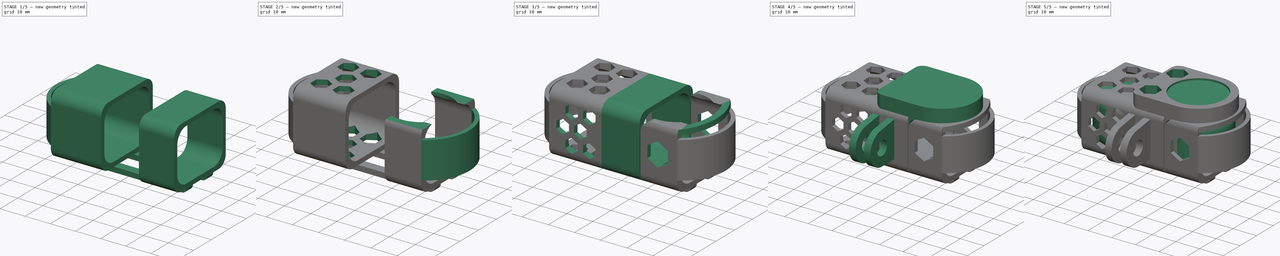
[diagram: build sequence overview — one tinted view per stage of 5, left to right]
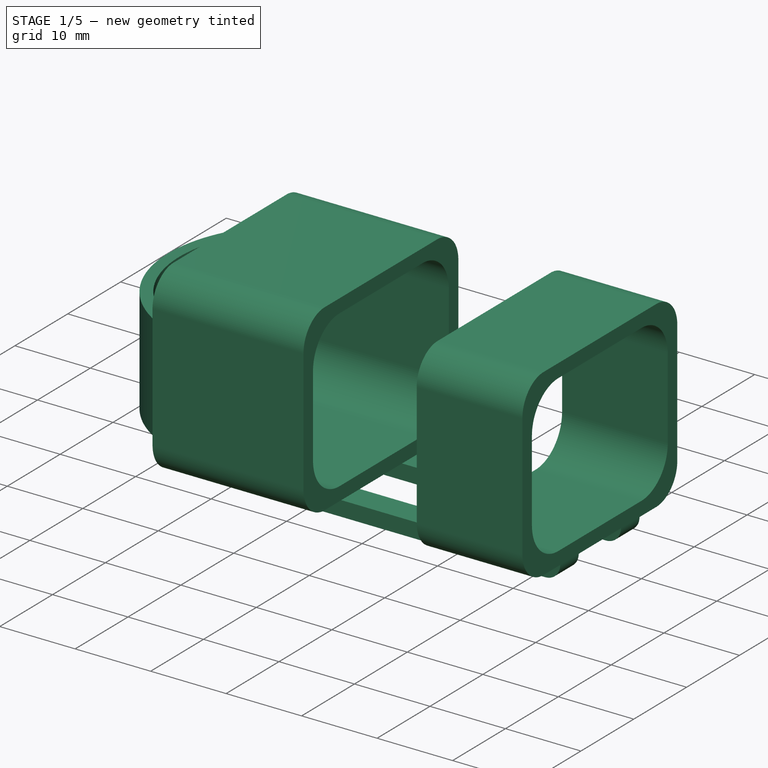
[diagram: stage 1 of 5 — iso view after this stage's code; geometry added in this stage tinted green]
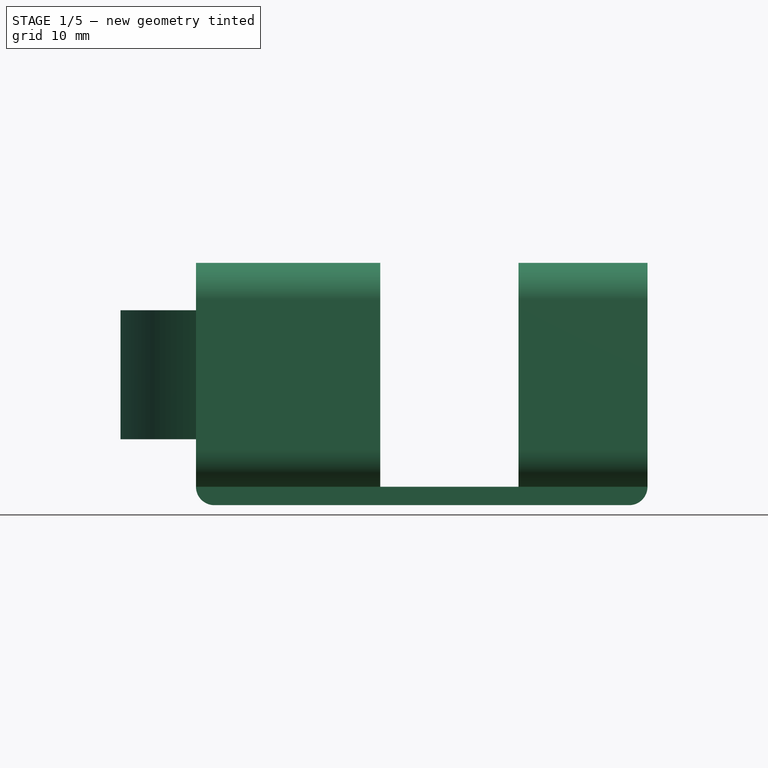
[diagram: stage 1 of 5 — front view after this stage's code; geometry added in this stage tinted green]
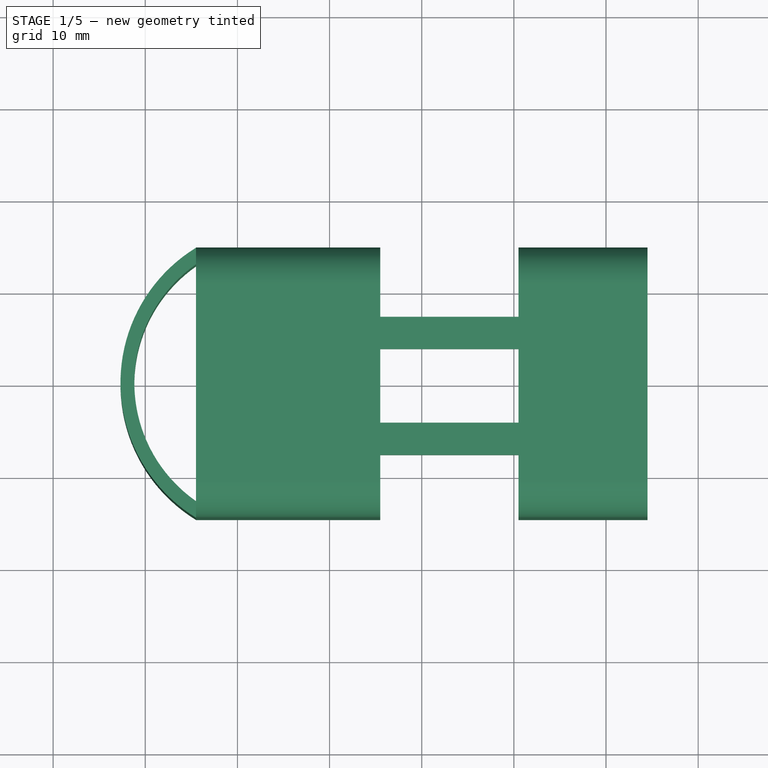
[diagram: stage 1 of 5 — top view after this stage's code; geometry added in this stage tinted green]
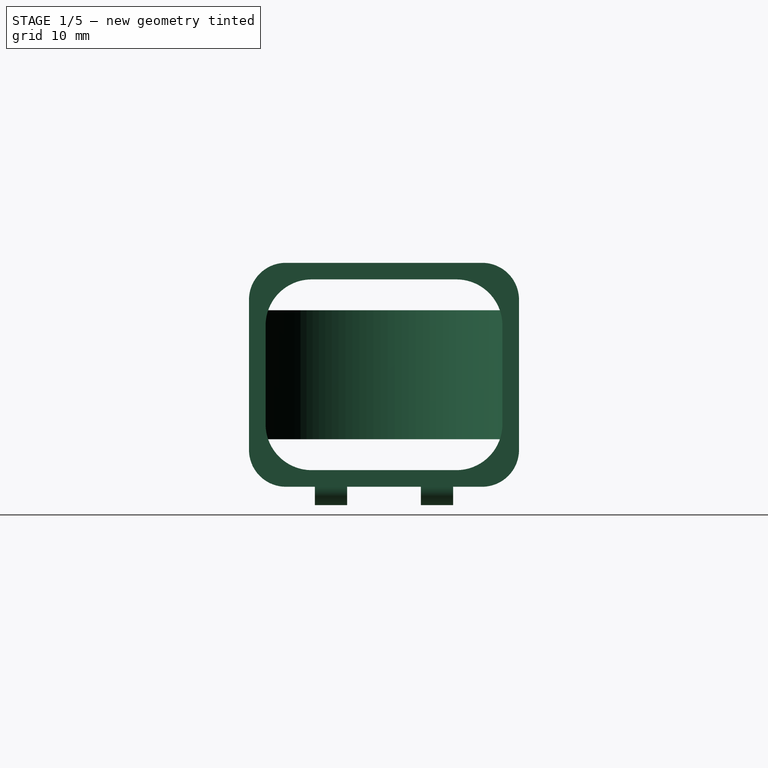
[diagram: stage 1 of 5 — right view after this stage's code; geometry added in this stage tinted green]
FCSTD DOCUMENT  (FreeCAD 1.0R39285 (Git))
Label: instaHolder
License: All rights reserved
LicenseURL: https://en.wikipedia.org/wiki/All_rights_reserved
objects: Sketcher::SketchObject×21, PartDesign::Pocket×12, PartDesign::Pad×10, PartDesign::Body×3, PartDesign::Fillet×2, PartDesign::Mirrored×2
note: 121 computed .brp shape members not serialized (recipe doc carries the construction recipe); baked Part::Feature solids carry a one-line shape summary decoded from their .brp

FEATURE [Sketcher::SketchObject] Sketch007
  ArcFitTolerance = 1e-06
  AttachmentSupport = -> [XY_Plane001]
  ExternalGeometry = -> [Pad004]
  FullyConstrained = true
  MakeInternals = false
  MapMode = 5
  sketch-geometry (1):
    g0: Circle CenterX=14.5 CenterY=-1.2e-15 CenterZ=0 NormalX=0 NormalY=0 NormalZ=1 AngleXU=0 Radius=11
  constraints (2):
    c: Coincident(g0,g-3)
    c: Diameter(g0) = 22
FEATURE [Sketcher::SketchObject] Sketch008
  ArcFitTolerance = 1e-06
  AttachmentOffset = pos=(0,0,-4.5) rot=(0,0,1;0rad)
  AttachmentSupport = -> [YZ_Plane002]
  FullyConstrained = true
  MakeInternals = false
  MapMode = 5
  Placement = pos=(-4.5,0,0) rot=(0.57735,0.57735,0.57735;2.0944rad)
  sketch-geometry (20):
    g0: LineSegment StartX=-12.85 StartY=5.35 StartZ=0 EndX=-12.85 EndY=-5.35 EndZ=0
    g1: LineSegment StartX=-7.85 StartY=-10.35 StartZ=0 EndX=7.85 EndY=-10.35 EndZ=0
    g2: LineSegment StartX=12.85 StartY=-5.35 StartZ=0 EndX=12.85 EndY=5.35 EndZ=0
    g3: LineSegment StartX=7.85 StartY=10.35 StartZ=0 EndX=-7.85 EndY=10.35 EndZ=0
    g4: ArcOfCircle CenterX=-7.85 CenterY=5.35 CenterZ=0 NormalX=0 NormalY=0 NormalZ=1 AngleXU=0 Radius=5 StartAngle=1.5708 EndAngle=3.14159
    g5: ArcOfCircle CenterX=-7.85 CenterY=-5.35 CenterZ=0 NormalX=0 NormalY=0 NormalZ=1 AngleXU=0 Radius=5 StartAngle=3.14159 EndAngle=4.71239
    g6: ArcOfCircle CenterX=7.85 CenterY=-5.35 CenterZ=0 NormalX=0 NormalY=0 NormalZ=1 AngleXU=0 Radius=5 StartAngle=4.71239 EndAngle=6.28319
    g7: ArcOfCircle CenterX=7.85 CenterY=5.35 CenterZ=0 NormalX=0 NormalY=0 NormalZ=1 AngleXU=0 Radius=5 StartAngle=4.5662e-12 EndAngle=1.5708
    g8: GeomPoint [constr] X=-12.85 Y=10.35 Z=0
    g9: GeomPoint [constr] X=12.85 Y=-10.35 Z=0
    g10: LineSegment StartX=-14.65 StartY=8.15 StartZ=0 EndX=-14.65 EndY=-8.15 EndZ=0
    g11: LineSegment StartX=-10.65 StartY=-12.15 StartZ=0 EndX=10.65 EndY=-12.15 EndZ=0
    g12: LineSegment StartX=14.65 StartY=-8.15 StartZ=0 EndX=14.65 EndY=8.15 EndZ=0
    g13: LineSegment StartX=10.65 StartY=12.15 StartZ=0 EndX=-10.65 EndY=12.15 EndZ=0
    g14: ArcOfCircle CenterX=-10.65 CenterY=8.15 CenterZ=0 NormalX=0 NormalY=0 NormalZ=1 AngleXU=0 Radius=4 StartAngle=1.5708 EndAngle=3.14159
    g15: ArcOfCircle CenterX=-10.65 CenterY=-8.15 CenterZ=0 NormalX=0 NormalY=0 NormalZ=1 AngleXU=0 Radius=4 StartAngle=3.14159 EndAngle=4.71239
    g16: ArcOfCircle CenterX=10.65 CenterY=-8.15 CenterZ=0 NormalX=0 NormalY=0 NormalZ=1 AngleXU=0 Radius=4 StartAngle=4.71239 EndAngle=6.28319
    g17: ArcOfCircle CenterX=10.65 CenterY=8.15 CenterZ=0 NormalX=0 NormalY=0 NormalZ=1 AngleXU=0 Radius=4 StartAngle=0 EndAngle=1.5708
    g18: GeomPoint [constr] X=-14.65 Y=12.15 Z=0
    g19: GeomPoint [constr] X=14.65 Y=-12.15 Z=0
  constraints (46):
    c: Tangent(g0,g4) = -1.5708
    c: Tangent(g0,g5) = -1.5708
    c: Tangent(g1,g5) = -1.5708
    c: Tangent(g1,g6) = -1.5708
    c: Tangent(g2,g6) = -1.5708
    c: Tangent(g2,g7) = -1.5708
    c: Tangent(g3,g7) = -1.5708
    c: Tangent(g3,g4) = -1.5708
    c: Vertical(g0)
    c: Vertical(g2)
    c: Horizontal(g1)
    c: Horizontal(g3)
    c: Equal(g4,g5)
    c: Equal(g5,g6)
    c: Equal(g6,g7)
    c: PointOnObject(g8,g0)
    c: PointOnObject(g8,g3)
    c: PointOnObject(g9,g1)
    c: PointOnObject(g9,g2)
    c: Distance(g0,g2) = 25.7
    c: Distance(g1,g3) = 20.7
    c: Radius(g5) = 5
    c: Symmetric(g4,g6,g-1)
    c: Tangent(g10,g14) = -1.5708
    c: Tangent(g10,g15) = -1.5708
    c: Tangent(g11,g15) = -1.5708
    c: Tangent(g11,g16) = -1.5708
    c: Tangent(g12,g16) = -1.5708
    c: Tangent(g12,g17) = -1.5708
    c: Tangent(g13,g17) = -1.5708
    c: Tangent(g13,g14) = -1.5708
    c: Vertical(g10)
    c: Vertical(g12)
    c: Horizontal(g11)
    c: Horizontal(g13)
    c: Equal(g14,g15)
    c: Equal(g15,g16)
    c: Equal(g16,g17)
    c: PointOnObject(g18,g10)
    c: PointOnObject(g18,g13)
    c: PointOnObject(g19,g11)
    c: PointOnObject(g19,g12)
    c: Symmetric(g17,g15,g-1)
    c: DistanceY(g3,g13) = 1.8
    c: DistanceX(g10,g0) = 1.8
    c: Radius(g17) = 4
FEATURE [PartDesign::Pad] Pad005  label="main"
  Direction = (1,0,0)
  Length = 20
  Length2 = 10
  Placement = pos=(0,0,0) rot=(1,1,1;2.0944rad)
  Profile = -> Sketch008
  ReferenceAxis = -> Sketch008 [N_Axis]
  Refine = true
  Reversed = true
  Suppressed = false
  Type = 0
FEATURE [Sketcher::SketchObject] Sketch012
  ArcFitTolerance = 1e-06
  AttachmentSupport = -> [XZ_Plane002]
  ExternalGeometry = -> [Pad005]
  FullyConstrained = true
  MakeInternals = false
  MapMode = 5
  Placement = pos=(0,0,0) rot=(1,0,0;1.5708rad)
  sketch-geometry (4):
    g0: ArcOfCircle CenterX=-22.5 CenterY=-12.15 CenterZ=0 NormalX=0 NormalY=0 NormalZ=1 AngleXU=0 Radius=2 StartAngle=3.14159 EndAngle=4.71239
    g1: LineSegment StartX=-22.5 StartY=-14.15 StartZ=0 EndX=22.5 EndY=-14.15 EndZ=0
    g2: ArcOfCircle CenterX=22.5 CenterY=-12.15 CenterZ=0 NormalX=0 NormalY=0 NormalZ=1 AngleXU=0 Radius=2 StartAngle=4.71239 EndAngle=6.28319
    g3: LineSegment StartX=-24.5 StartY=-12.15 StartZ=0 EndX=24.5 EndY=-12.15 EndZ=0
  constraints (10):
    c: Symmetric(g1,g0,g-2)
    c: Tangent(g2,g1) = -1.5708
    c: Tangent(g1,g0) = -1.5708
    c: Equal(g0,g2)
    c: Horizontal(g0,g0)
    c: Horizontal(g2,g2)
    c: Radius(g0) = 2
    c: Coincident(g0,g-3)
    c: Coincident(g3,g0)
    c: Coincident(g3,g2)
FEATURE [PartDesign::Pad] Pad006  label="back"
  BaseFeature = -> Pad005
  Direction = (0,-1,2e-16)
  Length = 15
  Length2 = 10
  Midplane = true
  Placement = pos=(0,0,0) rot=(1,1,1;2.0944rad)
  Profile = -> Sketch012
  ReferenceAxis = -> Sketch012 [N_Axis]
  Refine = true
  Suppressed = false
  Type = 0
FEATURE [Sketcher::SketchObject] Sketch013
  ArcFitTolerance = 1e-06
  AttachmentSupport = -> [XZ_Plane002]
  ExternalGeometry = -> [Pad006]
  FullyConstrained = true
  MakeInternals = false
  MapMode = 5
  Placement = pos=(0,0,0) rot=(1,0,0;1.5708rad)
  sketch-geometry (4):
    g0: LineSegment StartX=-24.5 StartY=-12.15 StartZ=0 EndX=-24.5 EndY=-14.15 EndZ=0
    g1: LineSegment StartX=-24.5 StartY=-14.15 StartZ=0 EndX=24.5 EndY=-14.15 EndZ=0
    g2: LineSegment StartX=24.5 StartY=-14.15 StartZ=0 EndX=24.5 EndY=-12.15 EndZ=0
    g3: LineSegment StartX=24.5 StartY=-12.15 StartZ=0 EndX=-24.5 EndY=-12.15 EndZ=0
  constraints (10):
    c: Coincident(g0,g1)
    c: Coincident(g1,g2)
    c: Coincident(g2,g3)
    c: Coincident(g3,g0)
    c: Vertical(g0)
    c: Vertical(g2)
    c: Horizontal(g1)
    c: Coincident(g0,g-3)
    c: Horizontal(g1,g-4)
    c: Symmetric(g2,g0,g-2)
FEATURE [PartDesign::Pocket] Pocket003  label="back001"
  BaseFeature = -> Pad006
  Direction = (0,1,-2e-16)
  Length = 8
  Length2 = 5
  Midplane = true
  Placement = pos=(0,0,0) rot=(1,1,1;2.0944rad)
  Profile = -> Sketch013
  ReferenceAxis = -> Sketch013 [N_Axis]
  Refine = true
  Suppressed = false
  Type = 0
FEATURE [Sketcher::SketchObject] Sketch014
  ArcFitTolerance = 1e-06
  AttachmentOffset = pos=(0,0,10.5) rot=(0,0,1;0rad)
  AttachmentSupport = -> [YZ_Plane002]
  FullyConstrained = true
  MakeInternals = false
  MapMode = 5
  Placement = pos=(10.5,0,0) rot=(0.57735,0.57735,0.57735;2.0944rad)
  sketch-geometry (20):
    g0: LineSegment StartX=-12.85 StartY=5.35 StartZ=0 EndX=-12.85 EndY=-5.35 EndZ=0
    g1: LineSegment StartX=-7.85 StartY=-10.35 StartZ=0 EndX=7.85 EndY=-10.35 EndZ=0
    g2: LineSegment StartX=12.85 StartY=-5.35 StartZ=0 EndX=12.85 EndY=5.35 EndZ=0
    g3: LineSegment StartX=7.85 StartY=10.35 StartZ=0 EndX=-7.85 EndY=10.35 EndZ=0
    g4: ArcOfCircle CenterX=-7.85 CenterY=5.35 CenterZ=0 NormalX=0 NormalY=0 NormalZ=1 AngleXU=0 Radius=5 StartAngle=1.5708 EndAngle=3.14159
    g5: ArcOfCircle CenterX=-7.85 CenterY=-5.35 CenterZ=0 NormalX=0 NormalY=0 NormalZ=1 AngleXU=0 Radius=5 StartAngle=3.14159 EndAngle=4.71239
    g6: ArcOfCircle CenterX=7.85 CenterY=-5.35 CenterZ=0 NormalX=0 NormalY=0 NormalZ=1 AngleXU=0 Radius=5 StartAngle=4.71239 EndAngle=6.28319
    g7: ArcOfCircle CenterX=7.85 CenterY=5.35 CenterZ=0 NormalX=0 NormalY=0 NormalZ=1 AngleXU=0 Radius=5 StartAngle=4.5662e-12 EndAngle=1.5708
    g8: GeomPoint [constr] X=-12.85 Y=10.35 Z=0
    g9: GeomPoint [constr] X=12.85 Y=-10.35 Z=0
    g10: LineSegment StartX=-14.65 StartY=8.15 StartZ=0 EndX=-14.65 EndY=-8.15 EndZ=0
    g11: LineSegment StartX=-10.65 StartY=-12.15 StartZ=0 EndX=10.65 EndY=-12.15 EndZ=0
    g12: LineSegment StartX=14.65 StartY=-8.15 StartZ=0 EndX=14.65 EndY=8.15 EndZ=0
    g13: LineSegment StartX=10.65 StartY=12.15 StartZ=0 EndX=-10.65 EndY=12.15 EndZ=0
    g14: ArcOfCircle CenterX=-10.65 CenterY=8.15 CenterZ=0 NormalX=0 NormalY=0 NormalZ=1 AngleXU=0 Radius=4 StartAngle=1.5708 EndAngle=3.14159
    g15: ArcOfCircle CenterX=-10.65 CenterY=-8.15 CenterZ=0 NormalX=0 NormalY=0 NormalZ=1 AngleXU=0 Radius=4 StartAngle=3.14159 EndAngle=4.71239
    g16: ArcOfCircle CenterX=10.65 CenterY=-8.15 CenterZ=0 NormalX=0 NormalY=0 NormalZ=1 AngleXU=0 Radius=4 StartAngle=4.71239 EndAngle=6.28319
    g17: ArcOfCircle CenterX=10.65 CenterY=8.15 CenterZ=0 NormalX=0 NormalY=0 NormalZ=1 AngleXU=0 Radius=4 StartAngle=0 EndAngle=1.5708
    g18: GeomPoint [constr] X=-14.65 Y=12.15 Z=0
    g19: GeomPoint [constr] X=14.65 Y=-12.15 Z=0
  constraints (46):
    c: Tangent(g0,g4) = -1.5708
    c: Tangent(g0,g5) = -1.5708
    c: Tangent(g1,g5) = -1.5708
    c: Tangent(g1,g6) = -1.5708
    c: Tangent(g2,g6) = -1.5708
    c: Tangent(g2,g7) = -1.5708
    c: Tangent(g3,g7) = -1.5708
    c: Tangent(g3,g4) = -1.5708
    c: Vertical(g0)
    c: Vertical(g2)
    c: Horizontal(g1)
    c: Horizontal(g3)
    c: Equal(g4,g5)
    c: Equal(g5,g6)
    c: Equal(g6,g7)
    c: PointOnObject(g8,g0)
    c: PointOnObject(g8,g3)
    c: PointOnObject(g9,g1)
    c: PointOnObject(g9,g2)
    c: Distance(g0,g2) = 25.7
    c: Distance(g1,g3) = 20.7
    c: Radius(g5) = 5
    c: Symmetric(g4,g6,g-1)
    c: Tangent(g10,g14) = -1.5708
    c: Tangent(g10,g15) = -1.5708
    c: Tangent(g11,g15) = -1.5708
    c: Tangent(g11,g16) = -1.5708
    c: Tangent(g12,g16) = -1.5708
    c: Tangent(g12,g17) = -1.5708
    c: Tangent(g13,g17) = -1.5708
    c: Tangent(g13,g14) = -1.5708
    c: Vertical(g10)
    c: Vertical(g12)
    c: Horizontal(g11)
    c: Horizontal(g13)
    c: Equal(g14,g15)
    c: Equal(g15,g16)
    c: Equal(g16,g17)
    c: PointOnObject(g18,g10)
    c: PointOnObject(g18,g13)
    c: PointOnObject(g19,g11)
    c: PointOnObject(g19,g12)
    c: Symmetric(g17,g15,g-1)
    c: DistanceY(g3,g13) = 1.8
    c: DistanceX(g10,g0) = 1.8
    c: Radius(g17) = 4
FEATURE [PartDesign::Pad] Pad007  label="lens part"
  BaseFeature = -> Pocket003
  Direction = (1,0,0)
  Length = 14
  Length2 = 10
  Placement = pos=(0,0,0) rot=(1,1,1;2.0944rad)
  Profile = -> Sketch014
  ReferenceAxis = -> Sketch014 [N_Axis]
  Refine = true
  Suppressed = false
  Type = 0
FEATURE [Sketcher::SketchObject] Sketch015
  ArcFitTolerance = 1e-06
  AttachmentSupport = -> [XY_Plane002]
  ExternalGeometry = -> [Pad007]
  FullyConstrained = true
  MakeInternals = false
  MapMode = 5
  sketch-geometry (4):
    g0: ArcOfCircle CenterX=-15.5 CenterY=-2e-16 CenterZ=0 NormalX=0 NormalY=0 NormalZ=1 AngleXU=0 Radius=15.6883 StartAngle=2.18178 EndAngle=4.1014
    g1: LineSegment StartX=-24.5 StartY=14.65 StartZ=0 EndX=-24.5 EndY=12.85 EndZ=0
    g2: LineSegment StartX=-24.5 StartY=-14.65 StartZ=0 EndX=-24.5 EndY=-12.85 EndZ=0
    g3: ArcOfCircle CenterX=-15.5 CenterY=-2e-16 CenterZ=0 NormalX=0 NormalY=0 NormalZ=1 AngleXU=0 Radius=17.1937 StartAngle=2.12169 EndAngle=4.1615
  constraints (10):
    c: Coincident(g0,g-4)
    c: Symmetric(g0,g0,g-1)
    c: DistanceX(g0,g-1) = 15.5
    c: Coincident(g1,g0)
    c: Symmetric(g-3,g2,g-1)
    c: Coincident(g3,g1)
    c: Coincident(g3,g2)
    c: Coincident(g3,g0)
    c: Vertical(g1)
    c: Coincident(g2,g0)
FEATURE [PartDesign::Pad] Pad008  label="left shield"
  BaseFeature = -> Pad007
  Direction = (0,0,1)
  Length = 14
  Length2 = 10
  Midplane = true
  Placement = pos=(0,0,0) rot=(1,1,1;2.0944rad)
  Profile = -> Sketch015
  ReferenceAxis = -> Sketch015 [N_Axis]
  Refine = true
  Suppressed = false
  Type = 0
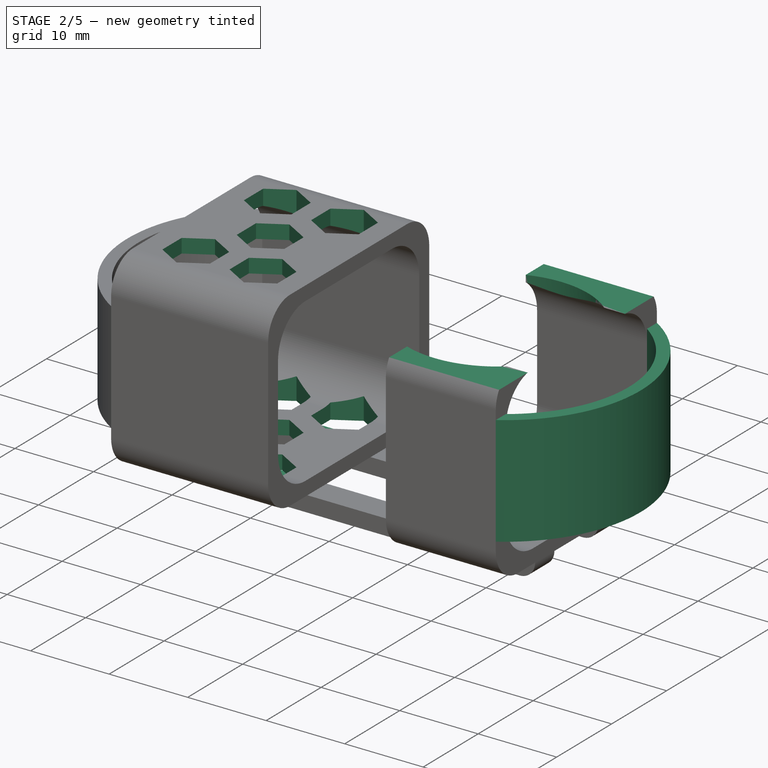
[diagram: stage 2 of 5 — iso view after this stage's code; geometry added in this stage tinted green]
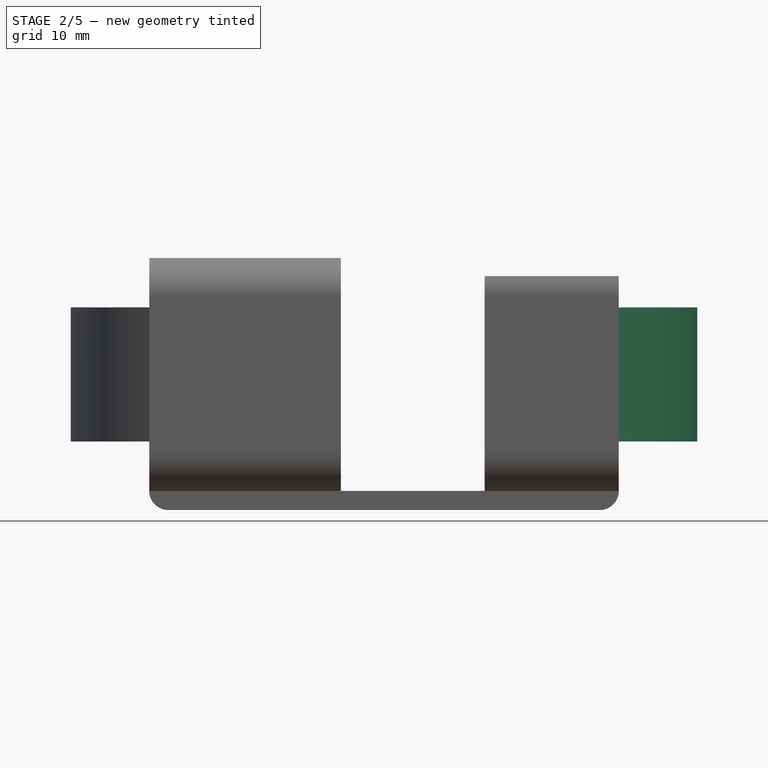
[diagram: stage 2 of 5 — front view after this stage's code; geometry added in this stage tinted green]
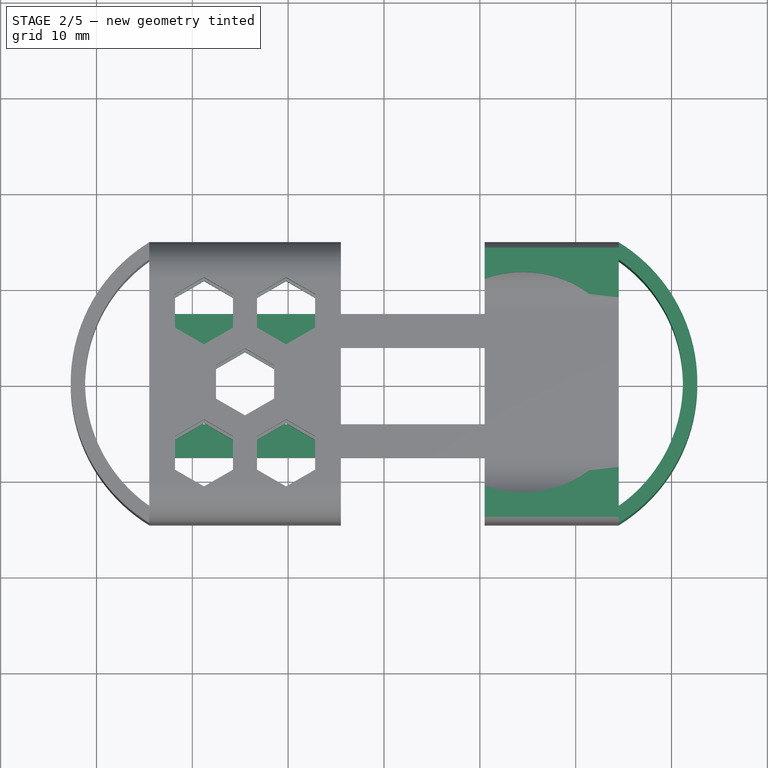
[diagram: stage 2 of 5 — top view after this stage's code; geometry added in this stage tinted green]
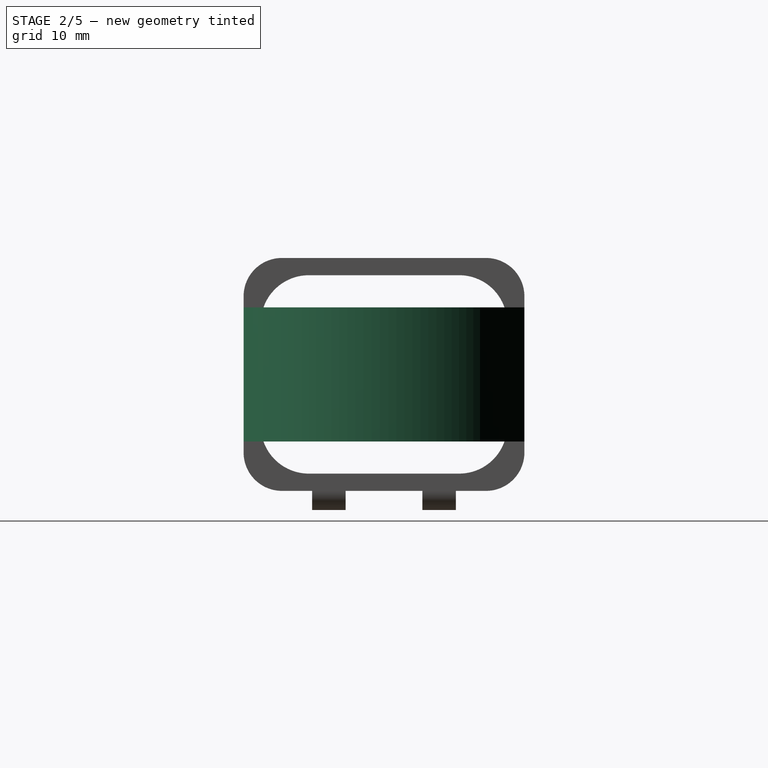
[diagram: stage 2 of 5 — right view after this stage's code; geometry added in this stage tinted green]
FEATURE [Sketcher::SketchObject] Sketch016
  ArcFitTolerance = 1e-06
  AttachmentOffset = pos=(0,0,10.25) rot=(0,0,-1;1.5708rad)
  AttachmentSupport = -> [XY_Plane002]
  FullyConstrained = true
  MakeInternals = false
  MapMode = 5
  Placement = pos=(0,0,10.25) rot=(0,0,-1;1.5708rad)
  sketch-geometry (4):
    g0: LineSegment StartX=-20 StartY=0 StartZ=0 EndX=20 EndY=0 EndZ=0
    g1: LineSegment StartX=20 StartY=0 StartZ=0 EndX=20 EndY=40 EndZ=0
    g2: LineSegment StartX=20 StartY=40 StartZ=0 EndX=-20 EndY=40 EndZ=0
    g3: LineSegment StartX=-20 StartY=40 StartZ=0 EndX=-20 EndY=0 EndZ=0
  constraints (11):
    c: Coincident(g0,g1)
    c: Coincident(g1,g2)
    c: Coincident(g2,g3)
    c: Coincident(g3,g0)
    c: Horizontal(g2)
    c: Vertical(g1)
    c: Vertical(g3)
    c: PointOnObject(g0,g-1)
    c: Equal(g2,g3)
    c: Symmetric(g0,g0,g-2)
    c: DistanceY(g3,g3) = 40
FEATURE [PartDesign::Pocket] Pocket004  label="lens cover pocket"
  BaseFeature = -> Pad008
  Direction = (0,0,-1)
  Length = 5
  Length2 = 5
  Placement = pos=(0,0,0) rot=(1,1,1;2.0944rad)
  Profile = -> Sketch016
  ReferenceAxis = -> Sketch016 [N_Axis]
  Refine = true
  Reversed = true
  Suppressed = false
  Type = 1
FEATURE [PartDesign::Mirrored] Mirrored
  BaseFeature = -> Pocket004
  MirrorPlane = -> YZ_Plane002
  Originals = -> [Pad008]
  Placement = pos=(0,0,0) rot=(1,1,1;2.0944rad)
  Refine = true
  Suppressed = false
  TransformMode = 0
FEATURE [Sketcher::SketchObject] Sketch017
  ArcFitTolerance = 1e-06
  AttachmentSupport = -> [XY_Plane002]
  FullyConstrained = true
  MakeInternals = false
  MapMode = 5
  sketch-geometry (1):
    g0: Circle CenterX=14.5 CenterY=0 CenterZ=0 NormalX=0 NormalY=0 NormalZ=1 AngleXU=0 Radius=11.5
  constraints (3):
    c: PointOnObject(g0,g-1)
    c: DistanceX(g-1,g0) = 14.5
    c: Diameter(g0) = 23
FEATURE [PartDesign::Pocket] Pocket005  label="lens pocket"
  BaseFeature = -> Mirrored
  Direction = (0,0,-1)
  Length = 5
  Length2 = 5
  Placement = pos=(0,0,0) rot=(1,1,1;2.0944rad)
  Profile = -> Sketch017
  ReferenceAxis = -> Sketch017 [N_Axis]
  Refine = true
  Reversed = true
  Suppressed = false
  Type = 1
FEATURE [Sketcher::SketchObject] Sketch018
  ArcFitTolerance = 1e-06
  AttachmentSupport = -> [XY_Plane002]
  FullyConstrained = true
  MakeInternals = false
  MapMode = 5
  sketch-geometry (39):
    g0: LineSegment StartX=-15.75 StartY=9.16506 StartZ=0 EndX=-18.7811 EndY=10.9151 EndZ=0
    g1: LineSegment StartX=-18.7811 StartY=10.9151 StartZ=0 EndX=-21.8122 EndY=9.16506 EndZ=0
    g2: LineSegment StartX=-21.8122 StartY=9.16506 StartZ=0 EndX=-21.8122 EndY=5.66506 EndZ=0
    g3: LineSegment StartX=-21.8122 StartY=5.66506 StartZ=0 EndX=-18.7811 EndY=3.91506 EndZ=0
    g4: LineSegment StartX=-18.7811 StartY=3.91506 StartZ=0 EndX=-15.75 EndY=5.66506 EndZ=0
    g5: LineSegment StartX=-15.75 StartY=5.66506 StartZ=0 EndX=-15.75 EndY=9.16506 EndZ=0
    g6: Circle [constr] CenterX=-18.7811 CenterY=7.41506 CenterZ=0 NormalX=0 NormalY=0 NormalZ=1 AngleXU=0 Radius=3.5
    g7: LineSegment StartX=-11.4689 StartY=1.75 StartZ=0 EndX=-14.5 EndY=3.5 EndZ=0
    g8: LineSegment StartX=-14.5 StartY=3.5 StartZ=0 EndX=-17.5311 EndY=1.75 EndZ=0
    g9: LineSegment StartX=-17.5311 StartY=1.75 StartZ=0 EndX=-17.5311 EndY=-1.75 EndZ=0
    g10: LineSegment StartX=-17.5311 StartY=-1.75 StartZ=0 EndX=-14.5 EndY=-3.5 EndZ=0
    g11: LineSegment StartX=-14.5 StartY=-3.5 StartZ=0 EndX=-11.4689 EndY=-1.75 EndZ=0
    g12: LineSegment StartX=-11.4689 StartY=-1.75 StartZ=0 EndX=-11.4689 EndY=1.75 EndZ=0
    g13: Circle [constr] CenterX=-14.5 CenterY=0 CenterZ=0 NormalX=0 NormalY=0 NormalZ=1 AngleXU=0 Radius=3.5
    g14: LineSegment StartX=-15.75 StartY=-5.66506 StartZ=0 EndX=-18.7811 EndY=-3.91506 EndZ=0
    g15: LineSegment StartX=-18.7811 StartY=-3.91506 StartZ=0 EndX=-21.8122 EndY=-5.66506 EndZ=0
    g16: LineSegment StartX=-21.8122 StartY=-5.66506 StartZ=0 EndX=-21.8122 EndY=-9.16506 EndZ=0
    g17: LineSegment StartX=-21.8122 StartY=-9.16506 StartZ=0 EndX=-18.7811 EndY=-10.9151 EndZ=0
    g18: LineSegment StartX=-18.7811 StartY=-10.9151 StartZ=0 EndX=-15.75 EndY=-9.16506 EndZ=0
    g19: LineSegment StartX=-15.75 StartY=-9.16506 StartZ=0 EndX=-15.75 EndY=-5.66506 EndZ=0
    g20: Circle [constr] CenterX=-18.7811 CenterY=-7.41506 CenterZ=0 NormalX=0 NormalY=0 NormalZ=1 AngleXU=0 Radius=3.5
    g21: LineSegment [constr] StartX=-15.75 StartY=5.66506 StartZ=0 EndX=-14.5 EndY=3.5 EndZ=0
    g22: LineSegment [constr] StartX=-17.5311 StartY=-1.75 StartZ=0 EndX=-18.7811 EndY=-3.91506 EndZ=0
    g23: LineSegment StartX=-7.18782 StartY=9.16506 StartZ=0 EndX=-10.2189 EndY=10.9151 EndZ=0
    g24: LineSegment StartX=-10.2189 StartY=10.9151 StartZ=0 EndX=-13.25 EndY=9.16506 EndZ=0
    g25: LineSegment StartX=-13.25 StartY=9.16506 StartZ=0 EndX=-13.25 EndY=5.66506 EndZ=0
    g26: LineSegment StartX=-13.25 StartY=5.66506 StartZ=0 EndX=-10.2189 EndY=3.91506 EndZ=0
    g27: LineSegment StartX=-10.2189 StartY=3.91506 StartZ=0 EndX=-7.18782 EndY=5.66506 EndZ=0
    g28: LineSegment StartX=-7.18782 StartY=5.66506 StartZ=0 EndX=-7.18782 EndY=9.16506 EndZ=0
    g29: Circle [constr] CenterX=-10.2189 CenterY=7.41506 CenterZ=0 NormalX=0 NormalY=0 NormalZ=1 AngleXU=0 Radius=3.5
    g30: LineSegment StartX=-10.2189 StartY=-3.91506 StartZ=0 EndX=-13.25 EndY=-5.66506 EndZ=0
    g31: LineSegment StartX=-13.25 StartY=-5.66506 StartZ=0 EndX=-13.25 EndY=-9.16506 EndZ=0
    g32: LineSegment StartX=-13.25 StartY=-9.16506 StartZ=0 EndX=-10.2189 EndY=-10.9151 EndZ=0
    g33: LineSegment StartX=-10.2189 StartY=-10.9151 StartZ=0 EndX=-7.18782 EndY=-9.16506 EndZ=0
    g34: LineSegment StartX=-7.18782 StartY=-9.16506 StartZ=0 EndX=-7.18782 EndY=-5.66506 EndZ=0
    g35: LineSegment StartX=-7.18782 StartY=-5.66506 StartZ=0 EndX=-10.2189 EndY=-3.91506 EndZ=0
    g36: Circle [constr] CenterX=-10.2189 CenterY=-7.41506 CenterZ=0 NormalX=0 NormalY=0 NormalZ=1 AngleXU=0 Radius=3.5
    g37: LineSegment [constr] StartX=-14.5 StartY=3.5 StartZ=0 EndX=-13.25 EndY=5.66506 EndZ=0
    g38: LineSegment [constr] StartX=-14.5 StartY=-3.5 StartZ=0 EndX=-13.25 EndY=-5.66506 EndZ=0
  constraints (93):
    c: Coincident(g0,g1)
    c: Coincident(g1,g2)
    c: Coincident(g2,g3)
    c: Coincident(g3,g4)
    c: Coincident(g4,g5)
    c: Coincident(g5,g0)
    c: Equal(g0, g1-g5) x5
    c: PointOnObject(g0,g6)
    c: PointOnObject(g1,g6)
    c: PointOnObject(g2,g6)
    c: PointOnObject(g3,g6)
    c: PointOnObject(g4,g6)
    c: PointOnObject(g5,g6)
    c: Coincident(g7,g8)
    c: Coincident(g8,g9)
    c: Coincident(g9,g10)
    c: Coincident(g10,g11)
    c: Coincident(g11,g12)
    c: Coincident(g12,g7)
    c: Equal(g7, g8-g12) x5
    c: PointOnObject(g7,g13)
    c: PointOnObject(g8,g13)
    c: PointOnObject(g9,g13)
    c: PointOnObject(g10,g13)
    c: PointOnObject(g11,g13)
    c: PointOnObject(g12,g13)
    c: Coincident(g14,g15)
    c: Coincident(g15,g16)
    c: Coincident(g16,g17)
    c: Coincident(g17,g18)
    c: Coincident(g18,g19)
    c: Coincident(g19,g14)
    c: Equal(g14, g15-g19) x5
    c: PointOnObject(g14,g20)
    c: PointOnObject(g15,g20)
    c: PointOnObject(g16,g20)
    c: PointOnObject(g17,g20)
    c: PointOnObject(g18,g20)
    c: PointOnObject(g19,g20)
    c: Equal(g6,g13)
    c: Equal(g13,g20)
    c: Coincident(g21,g4)
    c: Coincident(g21,g7)
    c: Coincident(g22,g9)
    c: Coincident(g22,g14)
    c: Equal(g21,g22)
    c: Perpendicular(g21,g8)
    c: Perpendicular(g4,g21)
    c: Perpendicular(g10,g22)
    c: Perpendicular(g14,g22)
    c: Vertical(g12)
    c: PointOnObject(g13,g-1)
    c: Distance(g21) = 2.5
    c: Diameter(g6) = 7
    c: DistanceX(g13,g-1) = 14.5
    c: Coincident(g23,g24)
    c: Coincident(g24,g25)
    c: Coincident(g25,g26)
    c: Coincident(g26,g27)
    c: Coincident(g27,g28)
    c: Coincident(g28,g23)
    c: Equal(g23, g24-g28) x5
    c: PointOnObject(g23,g29)
    c: PointOnObject(g24,g29)
    c: PointOnObject(g25,g29)
    c: PointOnObject(g26,g29)
    c: PointOnObject(g27,g29)
    c: PointOnObject(g28,g29)
    c: Coincident(g30,g31)
    c: Coincident(g31,g32)
    c: Coincident(g32,g33)
    c: Coincident(g33,g34)
    c: Coincident(g34,g35)
    c: Coincident(g35,g30)
    c: Equal(g30, g31-g35) x5
    c: PointOnObject(g30,g36)
    c: PointOnObject(g31,g36)
    c: PointOnObject(g32,g36)
    c: PointOnObject(g33,g36)
    c: PointOnObject(g34,g36)
    c: PointOnObject(g35,g36)
    c: Equal(g29,g6)
    c: Equal(g36,g29)
    c: Coincident(g37,g7)
    c: Coincident(g37,g25)
    c: Perpendicular(g37,g26)
    c: Perpendicular(g7,g37)
    c: Equal(g37,g21)
    c: Coincident(g38,g10)
    c: Coincident(g38,g30)
    c: Perpendicular(g38,g11)
    c: Perpendicular(g38,g30)
    c: Equal(g38,g22)
FEATURE [PartDesign::Pocket] Pocket006  label="front hex"
  BaseFeature = -> Pocket005
  Direction = (0,0,-1)
  Length = 5
  Length2 = 5
  Placement = pos=(0,0,0) rot=(1,1,1;2.0944rad)
  Profile = -> Sketch018
  ReferenceAxis = -> Sketch018 [N_Axis]
  Refine = true
  Reversed = true
  Suppressed = false
  Type = 1
FEATURE [PartDesign::Pocket] Pocket007  label="rear hex"
  BaseFeature = -> Pocket006
  Direction = (0,0,-1)
  Length = 0
  Length2 = 5
  Placement = pos=(0,0,0) rot=(1,1,1;2.0944rad)
  Profile = -> Sketch018
  ReferenceAxis = -> Sketch018 [N_Axis]
  Refine = true
  Suppressed = false
  Type = 3
  UpToFace = -> Pocket006 [Face15]
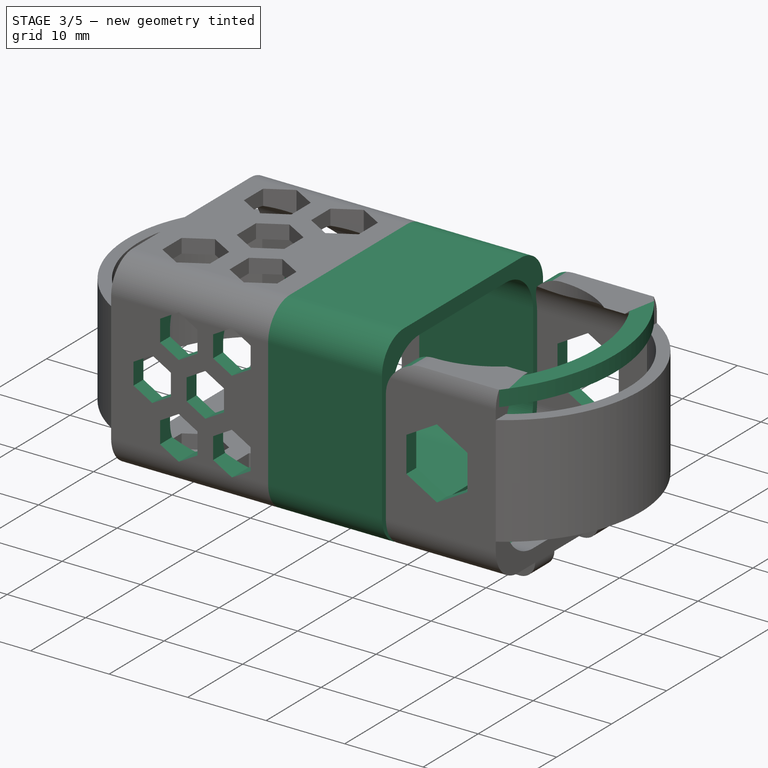
[diagram: stage 3 of 5 — iso view after this stage's code; geometry added in this stage tinted green]
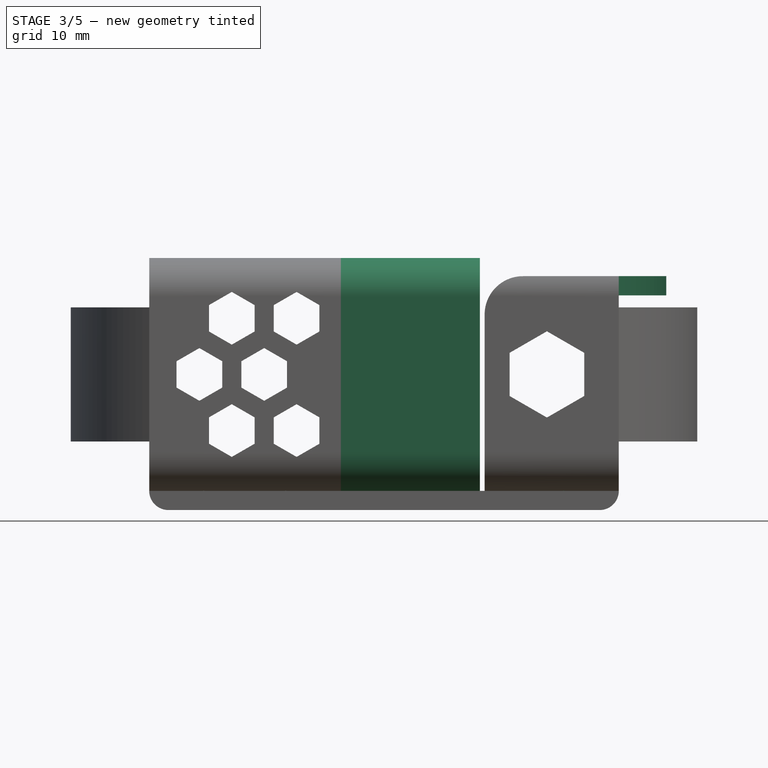
[diagram: stage 3 of 5 — front view after this stage's code; geometry added in this stage tinted green]
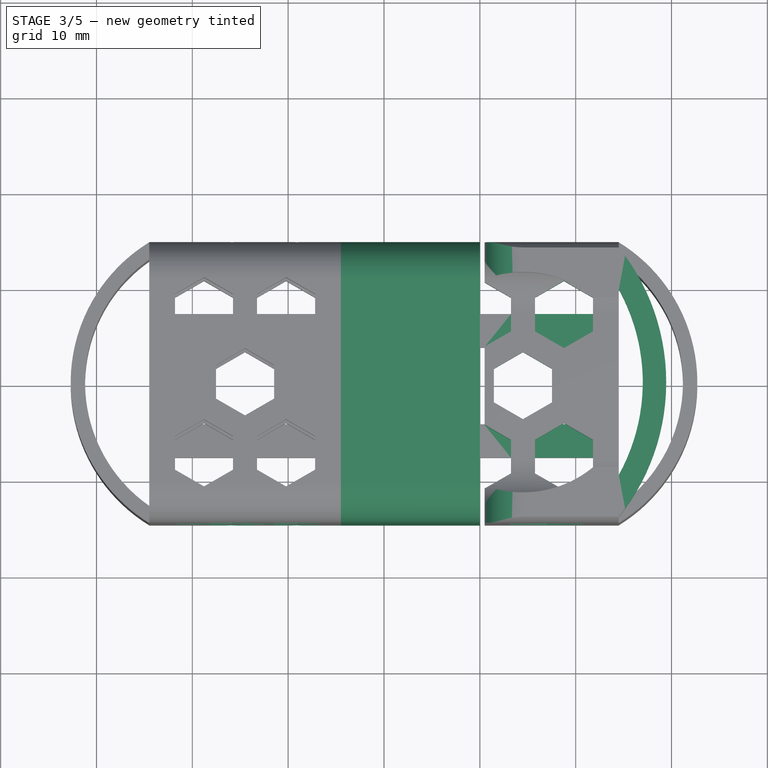
[diagram: stage 3 of 5 — top view after this stage's code; geometry added in this stage tinted green]
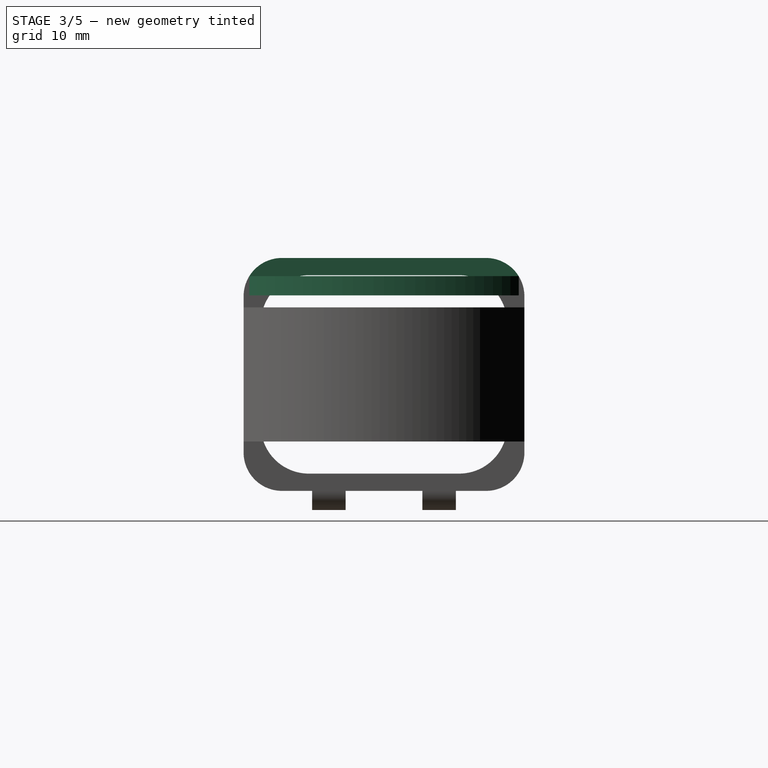
[diagram: stage 3 of 5 — right view after this stage's code; geometry added in this stage tinted green]
FEATURE [PartDesign::Body] Body  label="camera"
  AllowCompound = false
  Group = -> [Sketch,Pad,Fillet,Sketch001,Pad001]
  Origin = -> Origin
  Tip = -> Pad001
FEATURE [Sketcher::SketchObject] Sketch002
  ArcFitTolerance = 1e-06
  AttachmentSupport = -> [YZ_Plane001]
  FullyConstrained = true
  MakeInternals = false
  MapMode = 5
  Placement = pos=(0,0,0) rot=(0.57735,0.57735,0.57735;2.0944rad)
  sketch-geometry (20):
    g0: LineSegment StartX=-12.85 StartY=5.35 StartZ=0 EndX=-12.85 EndY=-5.35 EndZ=0
    g1: LineSegment StartX=-7.85 StartY=-10.35 StartZ=0 EndX=7.85 EndY=-10.35 EndZ=0
    g2: LineSegment StartX=12.85 StartY=-5.35 StartZ=0 EndX=12.85 EndY=5.35 EndZ=0
    g3: LineSegment StartX=7.85 StartY=10.35 StartZ=0 EndX=-7.85 EndY=10.35 EndZ=0
    g4: ArcOfCircle CenterX=-7.85 CenterY=5.35 CenterZ=0 NormalX=0 NormalY=0 NormalZ=1 AngleXU=0 Radius=5 StartAngle=1.5708 EndAngle=3.14159
    g5: ArcOfCircle CenterX=-7.85 CenterY=-5.35 CenterZ=0 NormalX=0 NormalY=0 NormalZ=1 AngleXU=0 Radius=5 StartAngle=3.14159 EndAngle=4.71239
    g6: ArcOfCircle CenterX=7.85 CenterY=-5.35 CenterZ=0 NormalX=0 NormalY=0 NormalZ=1 AngleXU=0 Radius=5 StartAngle=4.71239 EndAngle=6.28319
    g7: ArcOfCircle CenterX=7.85 CenterY=5.35 CenterZ=0 NormalX=0 NormalY=0 NormalZ=1 AngleXU=0 Radius=5 StartAngle=0 EndAngle=1.5708
    g8: GeomPoint [constr] X=-12.85 Y=10.35 Z=0
    g9: GeomPoint [constr] X=12.85 Y=-10.35 Z=0
    g10: LineSegment StartX=-14.65 StartY=8.15 StartZ=0 EndX=-14.65 EndY=-8.15 EndZ=0
    g11: LineSegment StartX=-10.65 StartY=-12.15 StartZ=0 EndX=10.65 EndY=-12.15 EndZ=0
    g12: LineSegment StartX=14.65 StartY=-8.15 StartZ=0 EndX=14.65 EndY=8.15 EndZ=0
    g13: LineSegment StartX=10.65 StartY=12.15 StartZ=0 EndX=-10.65 EndY=12.15 EndZ=0
    g14: ArcOfCircle CenterX=-10.65 CenterY=8.15 CenterZ=0 NormalX=0 NormalY=0 NormalZ=1 AngleXU=0 Radius=4 StartAngle=1.5708 EndAngle=3.14159
    g15: ArcOfCircle CenterX=-10.65 CenterY=-8.15 CenterZ=0 NormalX=0 NormalY=0 NormalZ=1 AngleXU=0 Radius=4 StartAngle=3.14159 EndAngle=4.71239
    g16: ArcOfCircle CenterX=10.65 CenterY=-8.15 CenterZ=0 NormalX=0 NormalY=0 NormalZ=1 AngleXU=0 Radius=4 StartAngle=4.71239 EndAngle=6.28319
    g17: ArcOfCircle CenterX=10.65 CenterY=8.15 CenterZ=0 NormalX=0 NormalY=0 NormalZ=1 AngleXU=0 Radius=4 StartAngle=0 EndAngle=1.5708
    g18: GeomPoint [constr] X=-14.65 Y=12.15 Z=0
    g19: GeomPoint [constr] X=14.65 Y=-12.15 Z=0
  constraints (46):
    c: Tangent(g0,g4) = -1.5708
    c: Tangent(g0,g5) = -1.5708
    c: Tangent(g1,g5) = -1.5708
    c: Tangent(g1,g6) = -1.5708
    c: Tangent(g2,g6) = -1.5708
    c: Tangent(g2,g7) = -1.5708
    c: Tangent(g3,g7) = -1.5708
    c: Tangent(g3,g4) = -1.5708
    c: Vertical(g0)
    c: Vertical(g2)
    c: Horizontal(g1)
    c: Horizontal(g3)
    c: Equal(g4,g5)
    c: Equal(g5,g6)
    c: Equal(g6,g7)
    c: PointOnObject(g8,g0)
    c: PointOnObject(g8,g3)
    c: PointOnObject(g9,g1)
    c: PointOnObject(g9,g2)
    c: Distance(g0,g2) = 25.7
    c: Distance(g1,g3) = 20.7
    c: Radius(g5) = 5
    c: Symmetric(g4,g6,g-1)
    c: Tangent(g10,g14) = -1.5708
    c: Tangent(g10,g15) = -1.5708
    c: Tangent(g11,g15) = -1.5708
    c: Tangent(g11,g16) = -1.5708
    c: Tangent(g12,g16) = -1.5708
    c: Tangent(g12,g17) = -1.5708
    c: Tangent(g13,g17) = -1.5708
    c: Tangent(g13,g14) = -1.5708
    c: Vertical(g10)
    c: Vertical(g12)
    c: Horizontal(g11)
    c: Horizontal(g13)
    c: Equal(g14,g15)
    c: Equal(g15,g16)
    c: Equal(g16,g17)
    c: PointOnObject(g18,g10)
    c: PointOnObject(g18,g13)
    c: PointOnObject(g19,g11)
    c: PointOnObject(g19,g12)
    c: Symmetric(g17,g15,g-1)
    c: DistanceY(g3,g13) = 1.8
    c: DistanceX(g10,g0) = 1.8
    c: Radius(g17) = 4
FEATURE [PartDesign::Pad] Pad002
  Direction = (1,0,0)
  Length = 10
  Length2 = 4.5
  Midplane = true
  Placement = pos=(0,0,0) rot=(1,1,1;2.0944rad)
  Profile = -> Sketch002
  ReferenceAxis = -> Sketch002 [N_Axis]
  Refine = true
  Suppressed = false
  Type = 4
FEATURE [PartDesign::Mirrored] Mirrored001
  BaseFeature = -> Pocket007
  MirrorPlane = -> YZ_Plane002
  Originals = -> [Pocket007]
  Placement = pos=(0,0,0) rot=(1,1,1;2.0944rad)
  Refine = true
  Suppressed = false
  TransformMode = 0
FEATURE [Sketcher::SketchObject] Sketch019
  ArcFitTolerance = 1e-06
  AttachmentSupport = -> [XZ_Plane002]
  FullyConstrained = true
  MakeInternals = false
  MapMode = 5
  Placement = pos=(0,0,0) rot=(1,0,0;1.5708rad)
  sketch-geometry (47):
    g0: LineSegment StartX=-16.8816 StartY=1.375 StartZ=0 EndX=-19.2631 EndY=2.75 EndZ=0
    g1: LineSegment StartX=-19.2631 StartY=2.75 StartZ=0 EndX=-21.6447 EndY=1.375 EndZ=0
    g2: LineSegment StartX=-21.6447 StartY=1.375 StartZ=0 EndX=-21.6447 EndY=-1.375 EndZ=0
    g3: LineSegment StartX=-21.6447 StartY=-1.375 StartZ=0 EndX=-19.2631 EndY=-2.75 EndZ=0
    g4: LineSegment StartX=-19.2631 StartY=-2.75 StartZ=0 EndX=-16.8816 EndY=-1.375 EndZ=0
    g5: LineSegment StartX=-16.8816 StartY=-1.375 StartZ=0 EndX=-16.8816 EndY=1.375 EndZ=0
    g6: Circle [constr] CenterX=-19.2631 CenterY=0 CenterZ=0 NormalX=0 NormalY=0 NormalZ=1 AngleXU=0 Radius=2.75
    g7: LineSegment StartX=-13.5 StartY=7.23205 StartZ=0 EndX=-15.8816 EndY=8.60705 EndZ=0
    g8: LineSegment StartX=-15.8816 StartY=8.60705 StartZ=0 EndX=-18.2631 EndY=7.23205 EndZ=0
    g9: LineSegment StartX=-18.2631 StartY=7.23205 StartZ=0 EndX=-18.2631 EndY=4.48205 EndZ=0
    g10: LineSegment StartX=-18.2631 StartY=4.48205 StartZ=0 EndX=-15.8816 EndY=3.10705 EndZ=0
    g11: LineSegment StartX=-15.8816 StartY=3.10705 StartZ=0 EndX=-13.5 EndY=4.48205 EndZ=0
    g12: LineSegment StartX=-13.5 StartY=4.48205 StartZ=0 EndX=-13.5 EndY=7.23205 EndZ=0
    g13: Circle [constr] CenterX=-15.8816 CenterY=5.85705 CenterZ=0 NormalX=0 NormalY=0 NormalZ=1 AngleXU=0 Radius=2.75
    g14: LineSegment [constr] StartX=-18.2631 StartY=4.48205 StartZ=0 EndX=-19.2631 EndY=2.75 EndZ=0
    g15: LineSegment StartX=-13.5 StartY=-4.48205 StartZ=0 EndX=-15.8816 EndY=-3.10705 EndZ=0
    g16: LineSegment StartX=-15.8816 StartY=-3.10705 StartZ=0 EndX=-18.2631 EndY=-4.48205 EndZ=0
    g17: LineSegment StartX=-18.2631 StartY=-4.48205 StartZ=0 EndX=-18.2631 EndY=-7.23205 EndZ=0
    g18: LineSegment StartX=-18.2631 StartY=-7.23205 StartZ=0 EndX=-15.8816 EndY=-8.60705 EndZ=0
    g19: LineSegment StartX=-15.8816 StartY=-8.60705 StartZ=0 EndX=-13.5 EndY=-7.23205 EndZ=0
    g20: LineSegment StartX=-13.5 StartY=-7.23205 StartZ=0 EndX=-13.5 EndY=-4.48205 EndZ=0
    g21: Circle [constr] CenterX=-15.8816 CenterY=-5.85705 CenterZ=0 NormalX=0 NormalY=0 NormalZ=1 AngleXU=0 Radius=2.75
    g22: LineSegment StartX=-10.1184 StartY=-1.375 StartZ=0 EndX=-10.1184 EndY=1.375 EndZ=0
    g23: LineSegment StartX=-10.1184 StartY=1.375 StartZ=0 EndX=-12.5 EndY=2.75 EndZ=0
    g24: LineSegment StartX=-12.5 StartY=2.75 StartZ=0 EndX=-14.8816 EndY=1.375 EndZ=0
    g25: LineSegment StartX=-14.8816 StartY=1.375 StartZ=0 EndX=-14.8816 EndY=-1.375 EndZ=0
    g26: LineSegment StartX=-14.8816 StartY=-1.375 StartZ=0 EndX=-12.5 EndY=-2.75 EndZ=0
    g27: LineSegment StartX=-12.5 StartY=-2.75 StartZ=0 EndX=-10.1184 EndY=-1.375 EndZ=0
    g28: Circle [constr] CenterX=-12.5 CenterY=0 CenterZ=0 NormalX=0 NormalY=0 NormalZ=1 AngleXU=0 Radius=2.75
    g29: LineSegment StartX=-6.73686 StartY=4.48205 StartZ=0 EndX=-6.73686 EndY=7.23205 EndZ=0
    g30: LineSegment StartX=-6.73686 StartY=7.23205 StartZ=0 EndX=-9.11843 EndY=8.60705 EndZ=0
    g31: LineSegment StartX=-9.11843 StartY=8.60705 StartZ=0 EndX=-11.5 EndY=7.23205 EndZ=0
    g32: LineSegment StartX=-11.5 StartY=7.23205 StartZ=0 EndX=-11.5 EndY=4.48205 EndZ=0
    g33: LineSegment StartX=-11.5 StartY=4.48205 StartZ=0 EndX=-9.11843 EndY=3.10705 EndZ=0
    g34: LineSegment StartX=-9.11843 StartY=3.10705 StartZ=0 EndX=-6.73686 EndY=4.48205 EndZ=0
    g35: Circle [constr] CenterX=-9.11843 CenterY=5.85705 CenterZ=0 NormalX=0 NormalY=0 NormalZ=1 AngleXU=0 Radius=2.75
    g36: LineSegment StartX=-6.73686 StartY=-4.48205 StartZ=0 EndX=-9.11843 EndY=-3.10705 EndZ=0
    g37: LineSegment StartX=-9.11843 StartY=-3.10705 StartZ=0 EndX=-11.5 EndY=-4.48205 EndZ=0
    g38: LineSegment StartX=-11.5 StartY=-4.48205 StartZ=0 EndX=-11.5 EndY=-7.23205 EndZ=0
    g39: LineSegment StartX=-11.5 StartY=-7.23205 StartZ=0 EndX=-9.11843 EndY=-8.60705 EndZ=0
    g40: LineSegment StartX=-9.11843 StartY=-8.60705 StartZ=0 EndX=-6.73686 EndY=-7.23205 EndZ=0
    g41: LineSegment StartX=-6.73686 StartY=-7.23205 StartZ=0 EndX=-6.73686 EndY=-4.48205 EndZ=0
    g42: Circle [constr] CenterX=-9.11843 CenterY=-5.85705 CenterZ=0 NormalX=0 NormalY=0 NormalZ=1 AngleXU=0 Radius=2.75
    g43: LineSegment [constr] StartX=-16.8816 StartY=1.375 StartZ=0 EndX=-14.8816 EndY=1.375 EndZ=0
    g44: LineSegment [constr] StartX=-12.5 StartY=2.75 StartZ=0 EndX=-11.5 EndY=4.48205 EndZ=0
    g45: LineSegment [constr] StartX=-14.8816 StartY=-1.375 StartZ=0 EndX=-15.8816 EndY=-3.10705 EndZ=0
    g46: LineSegment [constr] StartX=-12.5 StartY=-2.75 StartZ=0 EndX=-11.5 EndY=-4.48205 EndZ=0
  constraints (112):
    c: Coincident(g0,g1)
    c: Coincident(g1,g2)
    c: Coincident(g2,g3)
    c: Coincident(g3,g4)
    c: Coincident(g4,g5)
    c: Coincident(g5,g0)
    c: Equal(g0, g1-g5) x5
    c: PointOnObject(g0,g6)
    c: PointOnObject(g1,g6)
    c: PointOnObject(g2,g6)
    c: PointOnObject(g3,g6)
    c: PointOnObject(g4,g6)
    c: PointOnObject(g5,g6)
    c: PointOnObject(g6,g-1)
    c: Coincident(g7,g8)
    c: Coincident(g8,g9)
    c: Coincident(g9,g10)
    c: Coincident(g10,g11)
    c: Coincident(g11,g12)
    c: Coincident(g12,g7)
    c: Equal(g7, g8-g12) x5
    c: PointOnObject(g7,g13)
    c: PointOnObject(g8,g13)
    c: PointOnObject(g9,g13)
    c: PointOnObject(g10,g13)
    c: PointOnObject(g11,g13)
    c: PointOnObject(g12,g13)
    c: Vertical(g9)
    c: Equal(g13,g6)
    c: Coincident(g14,g9)
    c: Coincident(g14,g0)
    c: Perpendicular(g14,g10)
    c: Perpendicular(g14,g0)
    c: Distance(g14) = 2
    c: Diameter(g13) = 5.5
    c: Coincident(g15,g16)
    c: Coincident(g16,g17)
    c: Coincident(g17,g18)
    c: Coincident(g18,g19)
    c: Coincident(g19,g20)
    c: Coincident(g20,g15)
    c: Equal(g15, g16-g20) x5
    c: PointOnObject(g15,g21)
    c: PointOnObject(g16,g21)
    c: PointOnObject(g17,g21)
    c: PointOnObject(g18,g21)
    c: PointOnObject(g19,g21)
    c: PointOnObject(g20,g21)
    c: Coincident(g22,g23)
    c: Coincident(g23,g24)
    c: Coincident(g24,g25)
    c: Coincident(g25,g26)
    c: Coincident(g26,g27)
    c: Coincident(g27,g22)
    c: Equal(g22, g23-g27) x5
    c: PointOnObject(g22,g28)
    c: PointOnObject(g23,g28)
    c: PointOnObject(g24,g28)
    c: PointOnObject(g25,g28)
    c: PointOnObject(g26,g28)
    c: PointOnObject(g27,g28)
    c: PointOnObject(g28,g-1)
    c: Coincident(g29,g30)
    c: Coincident(g30,g31)
    c: Coincident(g31,g32)
    c: Coincident(g32,g33)
    c: Coincident(g33,g34)
    c: Coincident(g34,g29)
    c: Equal(g29, g30-g34) x5
    c: PointOnObject(g29,g35)
    c: PointOnObject(g30,g35)
    c: PointOnObject(g31,g35)
    c: PointOnObject(g32,g35)
    c: PointOnObject(g33,g35)
    c: PointOnObject(g34,g35)
    c: Coincident(g36,g37)
    c: Coincident(g37,g38)
    c: Coincident(g38,g39)
    c: Coincident(g39,g40)
    c: Coincident(g40,g41)
    c: Coincident(g41,g36)
    c: Equal(g36, g37-g41) x5
    c: PointOnObject(g36,g42)
    c: PointOnObject(g37,g42)
    c: PointOnObject(g38,g42)
    c: PointOnObject(g39,g42)
    c: PointOnObject(g40,g42)
    c: PointOnObject(g41,g42)
    c: Coincident(g43,g0)
    c: Coincident(g43,g24)
    c: Coincident(g44,g23)
    c: Coincident(g44,g32)
    c: Coincident(g45,g25)
    c: Coincident(g45,g15)
    c: Coincident(g46,g26)
    c: Coincident(g46,g37)
    c: Equal(g14,g43)
    c: Equal(g43,g44)
    c: Equal(g46,g45)
    c: Perpendicular(g5,g43)
    c: Perpendicular(g43,g25)
    c: Perpendicular(g44,g23)
    c: Perpendicular(g33,g44)
    c: Perpendicular(g27,g46)
    c: Perpendicular(g37,g46)
    c: Perpendicular(g26,g45)
    c: Perpendicular(g15,g45)
    c: Equal(g28,g35)
    c: Equal(g42,g21)
    c: Equal(g21,g6)
    c: Equal(g45,g43)
    c: DistanceX(g28,g-1) = 12.5
FEATURE [PartDesign::Pocket] Pocket008
  BaseFeature = -> Mirrored001
  Direction = (0,1,-2e-16)
  Length = 5
  Length2 = 5
  Midplane = true
  Placement = pos=(0,0,0) rot=(1,1,1;2.0944rad)
  Profile = -> Sketch019
  ReferenceAxis = -> Sketch019 [N_Axis]
  Refine = true
  Suppressed = false
  Type = 1
FEATURE [Sketcher::SketchObject] Sketch020
  ArcFitTolerance = 1e-06
  AttachmentSupport = -> [Pocket008]
  ExternalGeometry = -> [Pocket008]
  FullyConstrained = true
  MakeInternals = false
  MapMode = 5
  Placement = pos=(-1.71e-14,5.7e-15,10.25) rot=(0,0,-1;1.5708rad)
  sketch-geometry (4):
    g0: ArcOfCircle CenterX=0 CenterY=7 CenterZ=0 NormalX=0 NormalY=0 NormalZ=1 AngleXU=0 Radius=20 StartAngle=1.06544 EndAngle=2.07616
    g1: ArcOfCircle CenterX=0 CenterY=7 CenterZ=0 NormalX=0 NormalY=0 NormalZ=1 AngleXU=0 Radius=22.445 StartAngle=0.894162 EndAngle=2.24743
    g2: LineSegment StartX=-14.0544 StartY=24.5 StartZ=0 EndX=-9.68246 EndY=24.5 EndZ=0
    g3: LineSegment StartX=9.68246 StartY=24.5 StartZ=0 EndX=14.0544 EndY=24.5 EndZ=0
  constraints (12):
    c: Horizontal(g0,g0)
    c: Horizontal(g1,g0)
    c: Horizontal(g0,g1)
    c: Coincident(g2,g1)
    c: Coincident(g3,g0)
    c: Coincident(g3,g1)
    c: Coincident(g1,g0)
    c: PointOnObject(g0,g-2)
    c: DistanceY(g-1,g0) = 7
    c: Coincident(g2,g0)
    c: Diameter(g0) = 40
    c: Coincident(g1,g-4)
FEATURE [PartDesign::Pad] Pad009
  BaseFeature = -> Pocket008
  Direction = (-1.7e-15,0,1)
  Length = 2
  Length2 = 10
  Placement = pos=(0,0,0) rot=(1,1,1;2.0944rad)
  Profile = -> Sketch020
  ReferenceAxis = -> Sketch020 [N_Axis]
  Refine = true
  Reversed = true
  Suppressed = false
  Type = 0
FEATURE [Sketcher::SketchObject] Sketch021
  ArcFitTolerance = 1e-06
  AttachmentSupport = -> [XZ_Plane002]
  FullyConstrained = true
  MakeInternals = false
  MapMode = 5
  Placement = pos=(0,0,0) rot=(1,0,0;1.5708rad)
  sketch-geometry (7):
    g0: LineSegment StartX=20.8971 StartY=2.25 StartZ=0 EndX=17 EndY=4.5 EndZ=0
    g1: LineSegment StartX=17 StartY=4.5 StartZ=0 EndX=13.1029 EndY=2.25 EndZ=0
    g2: LineSegment StartX=13.1029 StartY=2.25 StartZ=0 EndX=13.1029 EndY=-2.25 EndZ=0
    g3: LineSegment StartX=13.1029 StartY=-2.25 StartZ=0 EndX=17 EndY=-4.5 EndZ=0
    g4: LineSegment StartX=17 StartY=-4.5 StartZ=0 EndX=20.8971 EndY=-2.25 EndZ=0
    g5: LineSegment StartX=20.8971 StartY=-2.25 StartZ=0 EndX=20.8971 EndY=2.25 EndZ=0
    g6: Circle [constr] CenterX=17 CenterY=0 CenterZ=0 NormalX=0 NormalY=0 NormalZ=1 AngleXU=0 Radius=4.5
  constraints (17):
    c: Coincident(g0,g1)
    c: Coincident(g1,g2)
    c: Coincident(g2,g3)
    c: Coincident(g3,g4)
    c: Coincident(g4,g5)
    c: Coincident(g5,g0)
    c: Equal(g0, g1-g5) x5
    c: PointOnObject(g0,g6)
    c: PointOnObject(g1,g6)
    c: PointOnObject(g2,g6)
    c: PointOnObject(g3,g6)
    c: PointOnObject(g4,g6)
    c: PointOnObject(g5,g6)
    c: PointOnObject(g6,g-1)
    c: Diameter(g6) = 9
    c: Vertical(g2)
    c: DistanceX(g-1,g6) = 17
FEATURE [PartDesign::Pocket] Pocket009
  BaseFeature = -> Pad009
  Direction = (0,1,-2e-16)
  Length = 5
  Length2 = 5
  Midplane = true
  Placement = pos=(0,0,0) rot=(1,1,1;2.0944rad)
  Profile = -> Sketch021
  ReferenceAxis = -> Sketch021 [N_Axis]
  Refine = true
  Suppressed = false
  Type = 1
FEATURE [PartDesign::Body] Body001  label="holder"
  AllowCompound = false
  Group = -> [Sketch002,Pad002,Sketch003,Pad003,Sketch004,Pocket,Sketch005,Pocket001,Sketch006,Pad004,Sketch007,Fillet001,Pocket002,Sketch022,Pocket010]
  Origin = -> Origin001
  Tip = -> Pocket010
FEATURE [Sketcher::SketchObject] Sketch023
  ArcFitTolerance = 1e-06
  AttachmentSupport = -> [XZ_Plane002]
  ExternalGeometry = -> [Pocket009]
  FullyConstrained = true
  MakeInternals = false
  MapMode = 5
  Placement = pos=(0,0,0) rot=(1,0,0;1.5708rad)
  sketch-geometry (3):
    g0: LineSegment StartX=10.5 StartY=10.25 StartZ=0 EndX=10.5 EndY=6.25 EndZ=0
    g1: LineSegment StartX=10.5 StartY=10.25 StartZ=0 EndX=14.5 EndY=10.25 EndZ=0
    g2: ArcOfCircle CenterX=14.5 CenterY=6.25 CenterZ=0 NormalX=0 NormalY=0 NormalZ=1 AngleXU=0 Radius=4 StartAngle=1.5708 EndAngle=3.14159
  constraints (7):
    c: Vertical(g0)
    c: Coincident(g1,g0)
    c: Tangent(g2,g1) = 1.5708
    c: Tangent(g2,g0) = -1.5708
    c: Radius(g2) = 4
    c: Coincident(g0,g-3)
    c: PointOnObject(g1,g-3)
FEATURE [PartDesign::Pocket] Pocket011
  BaseFeature = -> Pocket009
  Direction = (0,1,-2e-16)
  Length = 5
  Length2 = 5
  Midplane = true
  Placement = pos=(0,0,0) rot=(1,1,1;2.0944rad)
  Profile = -> Sketch023
  ReferenceAxis = -> Sketch023 [N_Axis]
  Refine = true
  Suppressed = false
  Type = 1
FEATURE [PartDesign::Body] Body002  label="shield"
  AllowCompound = false
  Group = -> [Sketch008,Pad005,Sketch012,Pad006,Sketch013,Pocket003,Sketch014,Pad007,Sketch015,Pad008,Sketch016,Pocket004,Mirrored,Sketch017,Pocket005,Sketch018,Pocket006,Pocket007,Mirrored001,Sketch019,Pocket008,Sketch020,Pad009,Sketch021,Pocket009,Sketch023,Pocket011]
  Origin = -> Origin002
  Tip = -> Pocket011
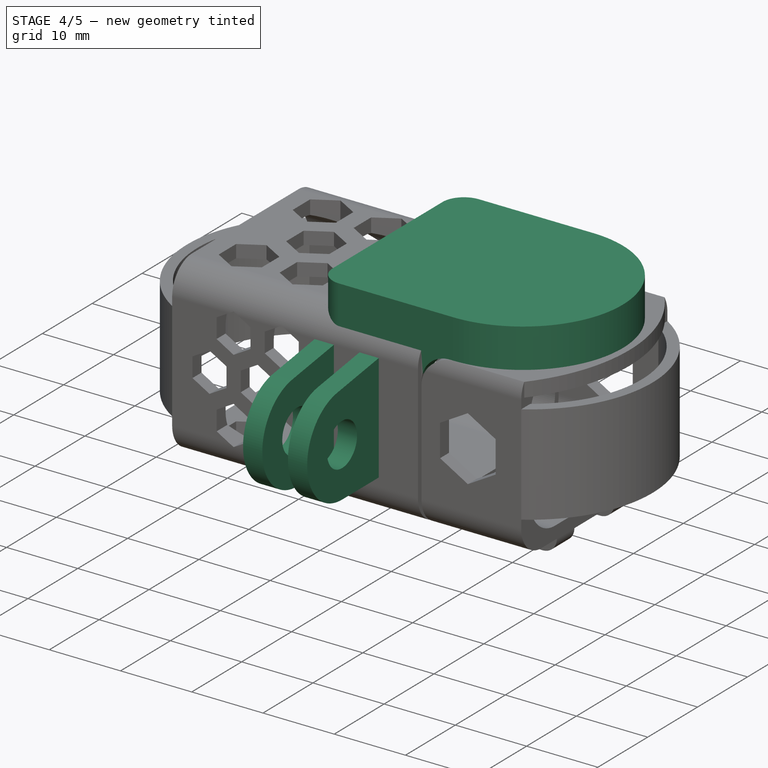
[diagram: stage 4 of 5 — iso view after this stage's code; geometry added in this stage tinted green]
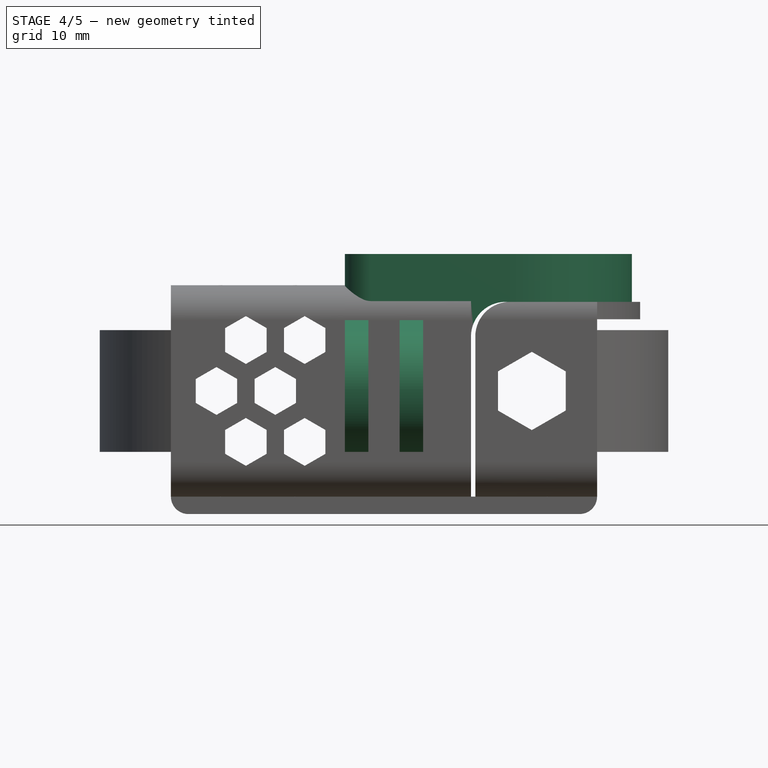
[diagram: stage 4 of 5 — front view after this stage's code; geometry added in this stage tinted green]
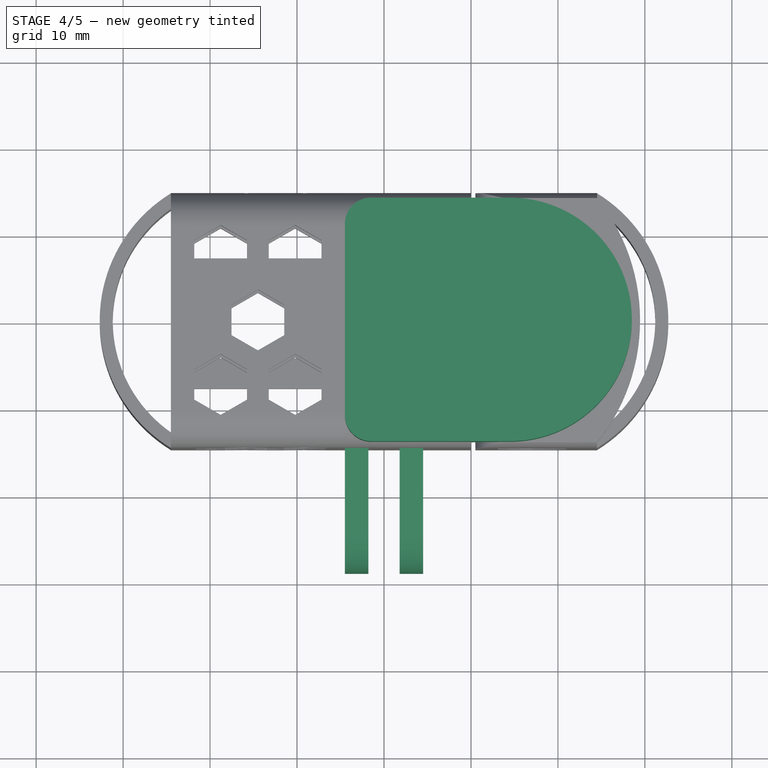
[diagram: stage 4 of 5 — top view after this stage's code; geometry added in this stage tinted green]
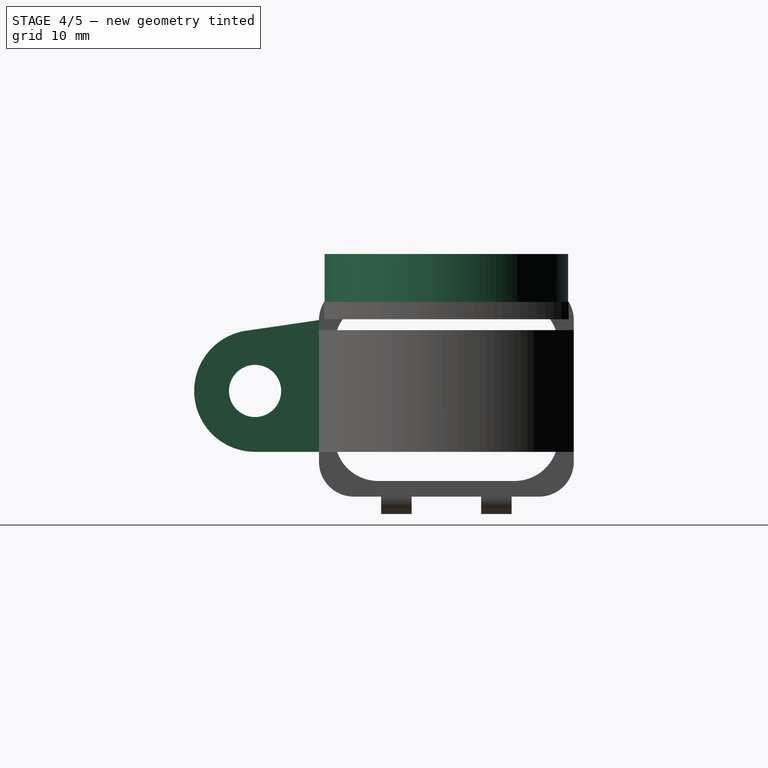
[diagram: stage 4 of 5 — right view after this stage's code; geometry added in this stage tinted green]
FEATURE [Sketcher::SketchObject] Sketch003
  ArcFitTolerance = 1e-06
  AttachmentSupport = -> [YZ_Plane001]
  ExternalGeometry = -> [Pad002]
  FullyConstrained = true
  MakeInternals = false
  MapMode = 5
  Placement = pos=(0,0,0) rot=(0.57735,0.57735,0.57735;2.0944rad)
  sketch-geometry (4):
    g0: ArcOfCircle CenterX=-22 CenterY=0 CenterZ=0 NormalX=0 NormalY=0 NormalZ=1 AngleXU=0 Radius=7 StartAngle=1.71609 EndAngle=4.71239
    g1: LineSegment StartX=-23.0135 StartY=6.92625 StartZ=0 EndX=-14.65 EndY=8.15 EndZ=0
    g2: LineSegment StartX=-22 StartY=-7 StartZ=0 EndX=-14.65 EndY=-7 EndZ=0
    g3: LineSegment StartX=-14.65 StartY=8.15 StartZ=0 EndX=-14.65 EndY=-7 EndZ=0
  constraints (10):
    c: PointOnObject(g0,g-1)
    c: Diameter(g0) = 14
    c: Coincident(g1,g-3)
    c: PointOnObject(g2,g-3)
    c: DistanceX(g0,g-1) = 22
    c: Horizontal(g2)
    c: Tangent(g0,g2) = -1.5708
    c: Tangent(g0,g1) = 1.5708
    c: Coincident(g3,g1)
    c: Coincident(g3,g2)
FEATURE [PartDesign::Pad] Pad003
  BaseFeature = -> Pad002
  Direction = (1,0,0)
  Length = 9
  Length2 = 10
  Midplane = true
  Placement = pos=(0,0,0) rot=(1,1,1;2.0944rad)
  Profile = -> Sketch003
  ReferenceAxis = -> Sketch003 [N_Axis]
  Refine = true
  Suppressed = false
  Type = 0
FEATURE [Sketcher::SketchObject] Sketch004
  ArcFitTolerance = 1e-06
  AttachmentSupport = -> [YZ_Plane001]
  ExternalGeometry = -> [Pad003]
  FullyConstrained = true
  MakeInternals = false
  MapMode = 5
  Placement = pos=(0,0,0) rot=(0.57735,0.57735,0.57735;2.0944rad)
  sketch-geometry (1):
    g0: Circle CenterX=-22 CenterY=0 CenterZ=0 NormalX=0 NormalY=0 NormalZ=1 AngleXU=0 Radius=3
  constraints (2):
    c: Coincident(g0,g-3)
    c: Diameter(g0) = 6
FEATURE [PartDesign::Pocket] Pocket
  BaseFeature = -> Pad003
  Direction = (-1,0,0)
  Length = 5
  Length2 = 5
  Midplane = true
  Placement = pos=(0,0,0) rot=(1,1,1;2.0944rad)
  Profile = -> Sketch004
  ReferenceAxis = -> Sketch004 [N_Axis]
  Refine = true
  Suppressed = false
  Type = 1
FEATURE [Sketcher::SketchObject] Sketch005
  ArcFitTolerance = 1e-06
  AttachmentSupport = -> [YZ_Plane001]
  ExternalGeometry = -> [Pocket]
  FullyConstrained = true
  MakeInternals = false
  MapMode = 5
  Placement = pos=(0,0,0) rot=(0.57735,0.57735,0.57735;2.0944rad)
  sketch-geometry (4):
    g0: LineSegment StartX=-14.65 StartY=-7 StartZ=0 EndX=-14.65 EndY=13 EndZ=0
    g1: LineSegment StartX=-14.65 StartY=13 StartZ=0 EndX=-34.65 EndY=13 EndZ=0
    g2: LineSegment StartX=-34.65 StartY=13 StartZ=0 EndX=-34.65 EndY=-7 EndZ=0
    g3: LineSegment StartX=-34.65 StartY=-7 StartZ=0 EndX=-14.65 EndY=-7 EndZ=0
  constraints (11):
    c: Coincident(g0,g1)
    c: Coincident(g1,g2)
    c: Coincident(g2,g3)
    c: Coincident(g3,g0)
    c: Vertical(g0)
    c: Vertical(g2)
    c: Horizontal(g1)
    c: Horizontal(g3)
    c: Equal(g1,g2)
    c: DistanceX(g1,g1) = 20
    c: Coincident(g0,g-3)
FEATURE [PartDesign::Pocket] Pocket001
  BaseFeature = -> Pocket
  Direction = (-1,0,0)
  Length = 3.6
  Length2 = 5
  Midplane = true
  Placement = pos=(0,0,0) rot=(1,1,1;2.0944rad)
  Profile = -> Sketch005
  ReferenceAxis = -> Sketch005 [N_Axis]
  Refine = true
  Suppressed = false
  Type = 0
FEATURE [Sketcher::SketchObject] Sketch006
  ArcFitTolerance = 1e-06
  AttachmentOffset = pos=(0,0,10.25) rot=(0,0,1;0rad)
  AttachmentSupport = -> [XY_Plane001]
  ExternalGeometry = -> [Pocket001]
  FullyConstrained = true
  MakeInternals = false
  MapMode = 5
  Placement = pos=(0,0,10.25) rot=(0,0,1;0rad)
  sketch-geometry (6):
    g0: ArcOfCircle CenterX=14.5 CenterY=0 CenterZ=0 NormalX=0 NormalY=0 NormalZ=1 AngleXU=0 Radius=14 StartAngle=4.71239 EndAngle=7.85398
    g1: LineSegment StartX=14.5 StartY=-14 StartZ=0 EndX=-1.5 EndY=-14 EndZ=0
    g2: LineSegment StartX=14.5 StartY=14 StartZ=0 EndX=-1.5 EndY=14 EndZ=0
    g3: LineSegment StartX=-4.5 StartY=11 StartZ=0 EndX=-4.5 EndY=-11 EndZ=0
    g4: ArcOfCircle CenterX=-1.5 CenterY=11 CenterZ=0 NormalX=0 NormalY=0 NormalZ=1 AngleXU=0 Radius=3 StartAngle=1.5708 EndAngle=3.14159
    g5: ArcOfCircle CenterX=-1.5 CenterY=-11 CenterZ=0 NormalX=0 NormalY=0 NormalZ=1 AngleXU=0 Radius=3 StartAngle=3.14159 EndAngle=4.71239
  constraints (15):
    c: PointOnObject(g0,g-1)
    c: DistanceX(g-1,g0) = 14.5
    c: Diameter(g0) = 28
    c: Horizontal(g1)
    c: Tangent(g1,g0) = 1.5708
    c: Horizontal(g2)
    c: Tangent(g2,g0) = -1.5708
    c: Tangent(g2,g4) = -1.5708
    c: Tangent(g3,g4) = -1.5708
    c: Tangent(g3,g5) = -1.5708
    c: Tangent(g1,g5) = 1.5708
    c: Equal(g4,g5)
    c: Radius(g4) = 3
    c: PointOnObject(g-3,g3)
    c: PointOnObject(g-3,g3)
FEATURE [PartDesign::Pad] Pad004
  BaseFeature = -> Pocket001
  Direction = (0,0,1)
  Length = 5.5
  Length2 = 10
  Placement = pos=(0,0,0) rot=(1,1,1;2.0944rad)
  Profile = -> Sketch006
  ReferenceAxis = -> Sketch006 [N_Axis]
  Refine = true
  Suppressed = false
  Type = 0
FEATURE [PartDesign::Fillet] Fillet001
  Base = -> Pad004 [Edge54,Edge62]
  BaseFeature = -> Pad004
  Placement = pos=(0,0,0) rot=(1,1,1;2.0944rad)
  Radius = 4
  Refine = true
  SupportTransform = false
  Suppressed = false
  UseAllEdges = false
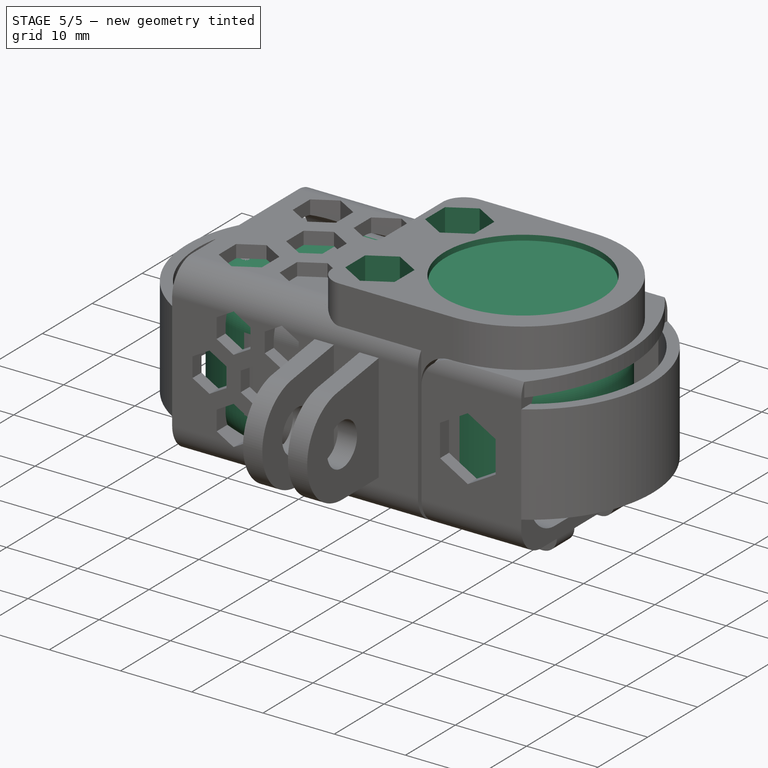
[diagram: stage 5 of 5 — iso view after this stage's code; geometry added in this stage tinted green]
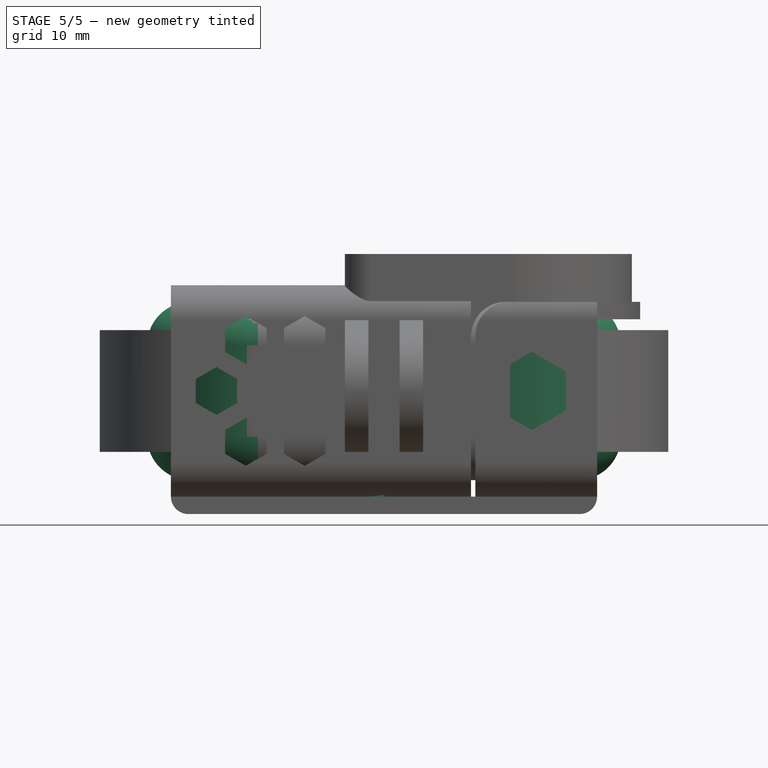
[diagram: stage 5 of 5 — front view after this stage's code; geometry added in this stage tinted green]
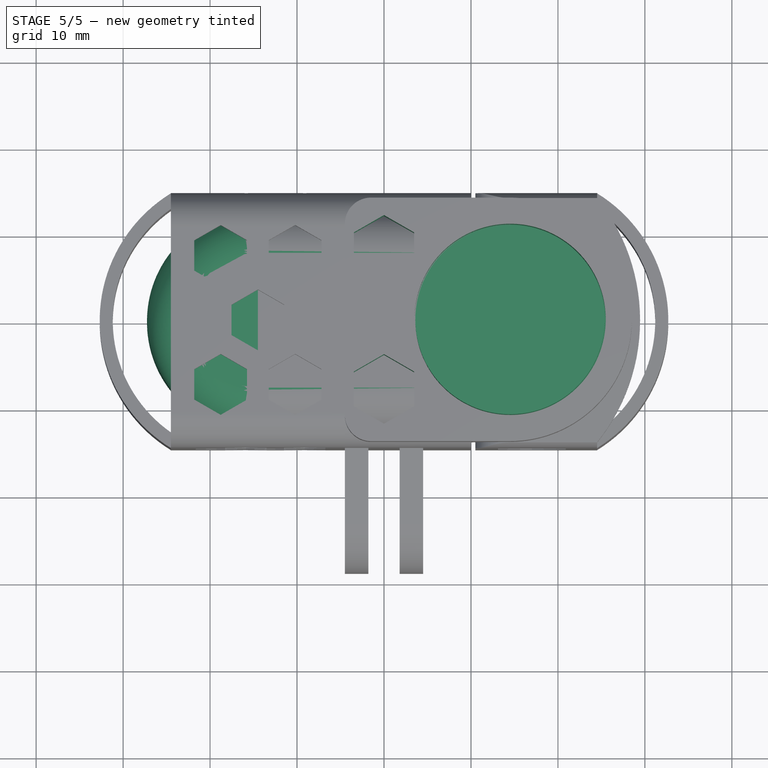
[diagram: stage 5 of 5 — top view after this stage's code; geometry added in this stage tinted green]
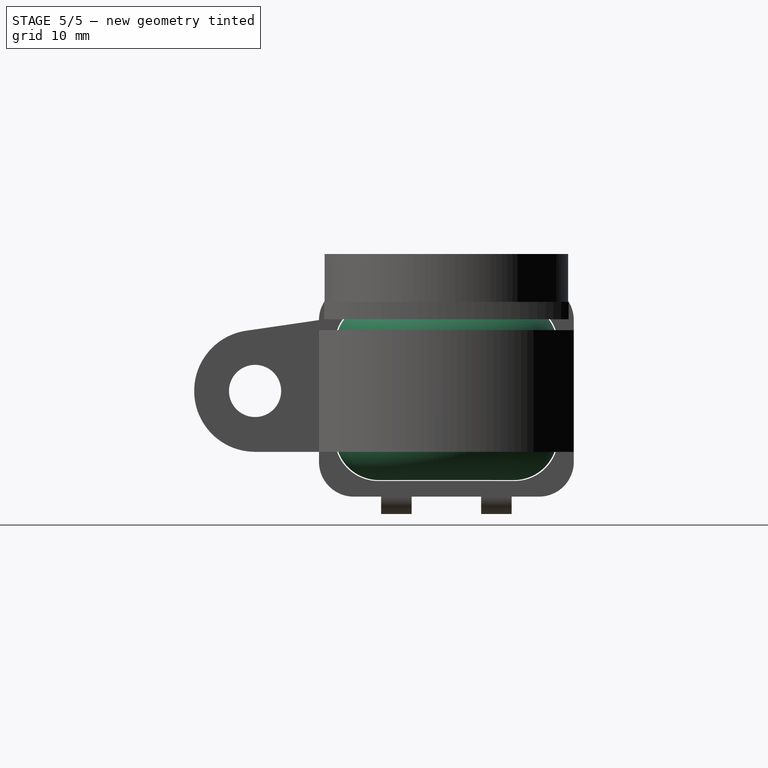
[diagram: stage 5 of 5 — right view after this stage's code; geometry added in this stage tinted green]
FEATURE [Sketcher::SketchObject] Sketch
  ArcFitTolerance = 1e-06
  AttachmentSupport = -> [XY_Plane]
  FullyConstrained = true
  MakeInternals = false
  MapMode = 5
  sketch-geometry (6):
    g0: ArcOfCircle CenterX=-14.5 CenterY=0 CenterZ=0 NormalX=0 NormalY=0 NormalZ=1 AngleXU=0 Radius=12.75 StartAngle=1.5708 EndAngle=4.71239
    g1: ArcOfCircle CenterX=14.5 CenterY=0 CenterZ=0 NormalX=0 NormalY=0 NormalZ=1 AngleXU=0 Radius=12.75 StartAngle=4.71239 EndAngle=7.85398
    g2: LineSegment StartX=-14.5 StartY=12.75 StartZ=0 EndX=14.5 EndY=12.75 EndZ=0
    g3: LineSegment StartX=-14.5 StartY=-12.75 StartZ=0 EndX=14.5 EndY=-12.75 EndZ=0
    g4: LineSegment [constr] StartX=-27.25 StartY=1.6e-15 StartZ=0 EndX=-27.25 EndY=12.75 EndZ=0
    g5: LineSegment [constr] StartX=27.25 StartY=0 StartZ=0 EndX=27.25 EndY=12.75 EndZ=0
  constraints (15):
    c: Tangent(g0,g2) = 1.5708
    c: Tangent(g0,g3) = -1.5708
    c: Tangent(g1,g2) = 1.5708
    c: Tangent(g1,g3) = -1.5708
    c: Equal(g0,g1)
    c: PointOnObject(g0,g-1)
    c: Diameter(g0) = 25.5
    c: Tangent(g4,g0) = 1.5708
    c: Vertical(g4)
    c: Tangent(g5,g1) = -1.5708
    c: Vertical(g5)
    c: PointOnObject(g4,g2)
    c: PointOnObject(g5,g2)
    c: Symmetric(g1,g0,g-2)
    c: DistanceX(g4,g5) = 54.5
FEATURE [PartDesign::Pad] Pad
  Direction = (0,0,1)
  Length = 20.5
  Length2 = 10
  Midplane = true
  Profile = -> Sketch
  ReferenceAxis = -> Sketch [N_Axis]
  Refine = true
  Suppressed = false
  Type = 0
FEATURE [PartDesign::Fillet] Fillet
  Base = -> Pad [Edge10,Edge9]
  BaseFeature = -> Pad
  Radius = 5
  Refine = true
  SupportTransform = false
  Suppressed = false
  UseAllEdges = false
FEATURE [Sketcher::SketchObject] Sketch001
  ArcFitTolerance = 1e-06
  AttachmentSupport = -> [Fillet]
  ExternalGeometry = -> [Fillet]
  FullyConstrained = true
  MakeInternals = false
  MapMode = 5
  Placement = pos=(0,0,10.25) rot=(0,0,1;0rad)
  sketch-geometry (1):
    g0: Circle CenterX=14.5 CenterY=0 CenterZ=0 NormalX=0 NormalY=0 NormalZ=1 AngleXU=0 Radius=10.9
  constraints (2):
    c: Diameter(g0) = 21.8
    c: Coincident(g0,g-3)
FEATURE [PartDesign::Pad] Pad001
  BaseFeature = -> Fillet
  Direction = (0,0,1)
  Length = 4.8
  Length2 = 10
  Profile = -> Sketch001
  ReferenceAxis = -> Sketch001 [N_Axis]
  Refine = true
  Suppressed = false
  Type = 0
FEATURE [PartDesign::Pocket] Pocket002
  BaseFeature = -> Fillet001
  Direction = (0,0,-1)
  Length = 5
  Length2 = 5
  Placement = pos=(0,0,0) rot=(1,1,1;2.0944rad)
  Profile = -> Sketch007
  ReferenceAxis = -> Sketch007 [N_Axis]
  Refine = true
  Reversed = true
  Suppressed = false
  Type = 1
FEATURE [Sketcher::SketchObject] Sketch022
  ArcFitTolerance = 1e-06
  AttachmentSupport = -> [XY_Plane001]
  FullyConstrained = true
  MakeInternals = false
  MapMode = 5
  sketch-geometry (14):
    g0: LineSegment StartX=0 StartY=12 StartZ=0 EndX=-3.4641 EndY=10 EndZ=0
    g1: LineSegment StartX=-3.4641 StartY=10 StartZ=0 EndX=-3.4641 EndY=6 EndZ=0
    g2: LineSegment StartX=-3.4641 StartY=6 StartZ=0 EndX=1.5457e-11 EndY=4 EndZ=0
    g3: LineSegment StartX=1.5457e-11 StartY=4 StartZ=0 EndX=3.4641 EndY=6 EndZ=0
    g4: LineSegment StartX=3.4641 StartY=6 StartZ=0 EndX=3.4641 EndY=10 EndZ=0
    g5: LineSegment StartX=3.4641 StartY=10 StartZ=0 EndX=0 EndY=12 EndZ=0
    g6: Circle [constr] CenterX=0 CenterY=8 CenterZ=0 NormalX=0 NormalY=0 NormalZ=1 AngleXU=0 Radius=4
    g7: LineSegment StartX=0 StartY=-4 StartZ=0 EndX=-3.4641 EndY=-6 EndZ=0
    g8: LineSegment StartX=-3.4641 StartY=-6 StartZ=0 EndX=-3.4641 EndY=-10 EndZ=0
    g9: LineSegment StartX=-3.4641 StartY=-10 StartZ=0 EndX=1.54574e-11 EndY=-12 EndZ=0
    g10: LineSegment StartX=1.54574e-11 StartY=-12 StartZ=0 EndX=3.4641 EndY=-10 EndZ=0
    g11: LineSegment StartX=3.4641 StartY=-10 StartZ=0 EndX=3.4641 EndY=-6 EndZ=0
    g12: LineSegment StartX=3.4641 StartY=-6 StartZ=0 EndX=0 EndY=-4 EndZ=0
    g13: Circle [constr] CenterX=0 CenterY=-8 CenterZ=0 NormalX=0 NormalY=0 NormalZ=1 AngleXU=0 Radius=4
  constraints (33):
    c: Coincident(g0,g1)
    c: Coincident(g1,g2)
    c: Coincident(g2,g3)
    c: Coincident(g3,g4)
    c: Coincident(g4,g5)
    c: Coincident(g5,g0)
    c: Equal(g0, g1-g5) x5
    c: PointOnObject(g0,g6)
    c: PointOnObject(g1,g6)
    c: PointOnObject(g2,g6)
    c: PointOnObject(g3,g6)
    c: PointOnObject(g4,g6)
    c: PointOnObject(g5,g6)
    c: PointOnObject(g6,g-2)
    c: PointOnObject(g5,g-2)
    c: Coincident(g7,g8)
    c: Coincident(g8,g9)
    c: Coincident(g9,g10)
    c: Coincident(g10,g11)
    c: Coincident(g11,g12)
    c: Coincident(g12,g7)
    c: Equal(g7, g8-g12) x5
    c: PointOnObject(g7,g13)
    c: PointOnObject(g8,g13)
    c: PointOnObject(g9,g13)
    c: PointOnObject(g10,g13)
    c: PointOnObject(g11,g13)
    c: PointOnObject(g12,g13)
    c: PointOnObject(g12,g-2)
    c: Equal(g6,g13)
    c: Symmetric(g13,g6,g-1)
    c: DistanceY(g-1,g6) = 8
    c: Diameter(g6) = 8
FEATURE [PartDesign::Pocket] Pocket010
  BaseFeature = -> Pocket002
  Direction = (0,0,-1)
  Length = 5
  Length2 = 5
  Midplane = true
  Placement = pos=(0,0,0) rot=(1,1,1;2.0944rad)
  Profile = -> Sketch022
  ReferenceAxis = -> Sketch022 [N_Axis]
  Refine = true
  Suppressed = false
  Type = 1
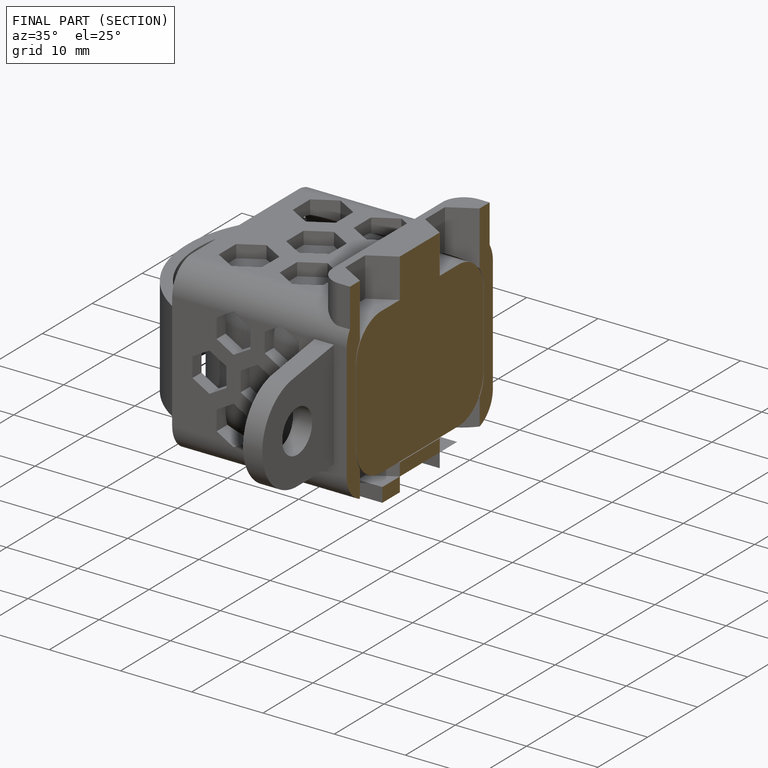
[diagram: finished part — half-section view (interior)]
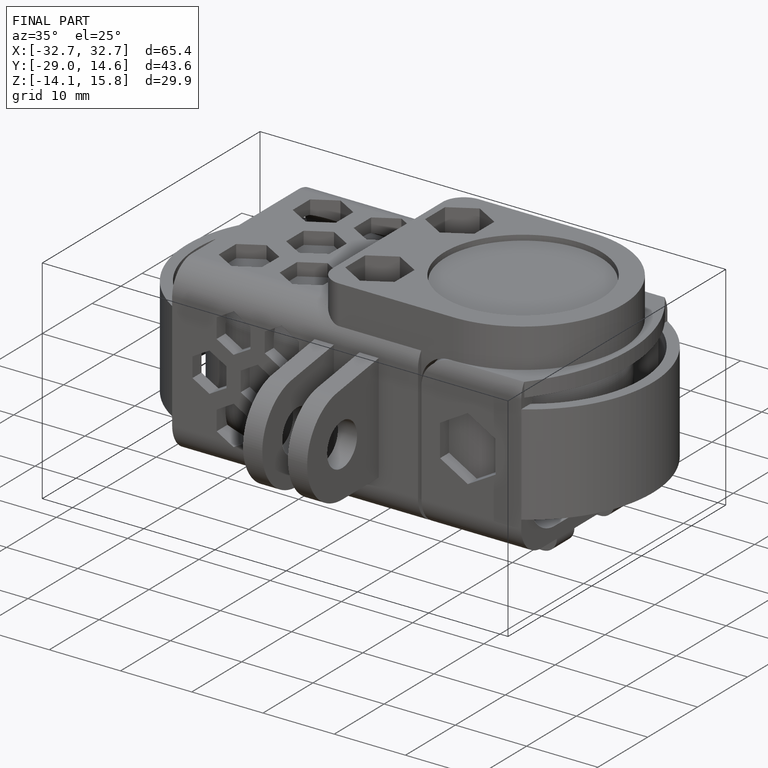
[diagram: finished part — iso view with bounding-box wireframe]
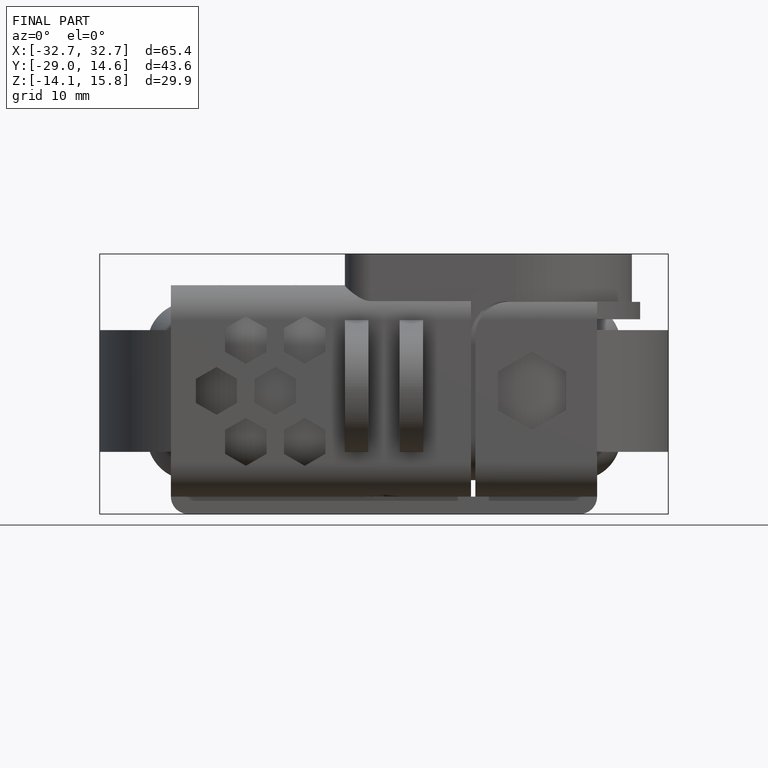
[diagram: finished part — front view with bounding-box wireframe]
